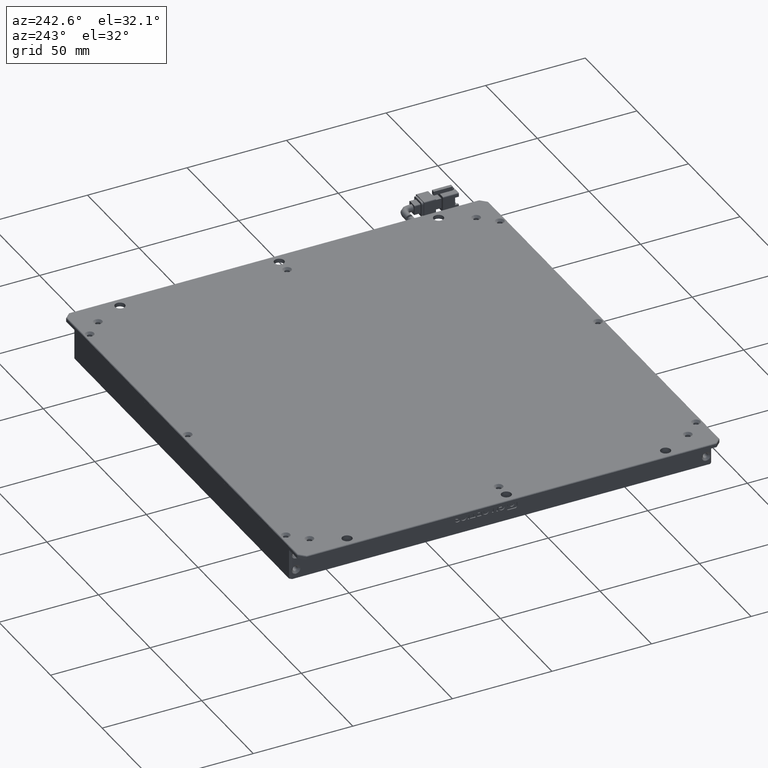
[diagram: clean part render]
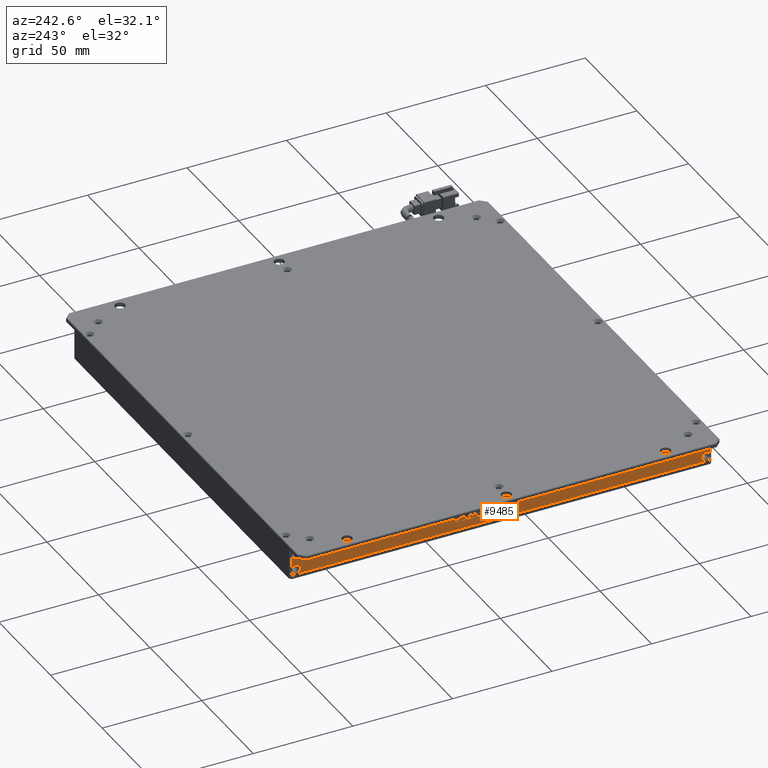
[diagram: same view with one face highlighted and labeled with its STEP entity id]
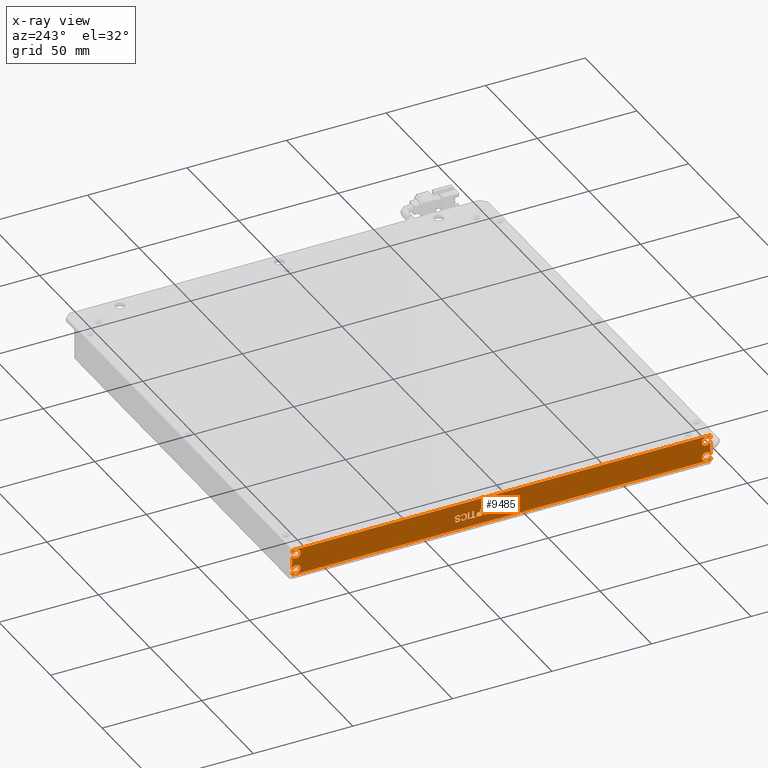
[diagram: x-ray of the same camera — body ghosted, the highlighted face saturated]
A machine part, auxiliary view. The second image highlights one B-rep face of the part: STEP entity #9485.
The next image is the same camera in x-ray: the body ghosted, the highlighted face saturated — about 0% of this face is hidden behind the body in this view.
In plain terms, the highlighted planar face has unit normal (-1, 0, -0).
Its self-contained STEP definition (entity closure, byte-faithful):
#14 = VECTOR ( 'NONE', #15213, 1000.000000000000000 ) ;
#16 = CARTESIAN_POINT ( 'NONE',  ( -86.33424941752387800, -20.67919464486184100, -9.082796994100927900 ) ) ;
#74 = CARTESIAN_POINT ( 'NONE',  ( -86.33424941752387800, -33.73964624031899700, -5.517680715031124400 ) ) ;
#76 = DIRECTION ( 'NONE',  ( -0.0000000000000000000, -0.0000000000000000000, -1.000000000000000000 ) ) ;
#170 = CARTESIAN_POINT ( 'NONE',  ( -86.33424941752387800, -15.64744775465093300, -5.572102023846790400 ) ) ;
#180 = CARTESIAN_POINT ( 'NONE',  ( -86.33424941752387800, -12.85814272490498700, -6.787448156891649400 ) ) ;
#190 = CARTESIAN_POINT ( 'NONE',  ( -86.33424941752387800, -16.22951914459169800, -7.324657459217241300 ) ) ;
#214 = CARTESIAN_POINT ( 'NONE',  ( -86.33424941752160500, 71.62124601721927800, -1.583484861002810300 ) ) ;
#271 = CARTESIAN_POINT ( 'NONE',  ( -86.33424941752387800, -28.87996533171977000, -7.096750482473000300 ) ) ;
#273 = EDGE_CURVE ( 'NONE', #15029, #590, #13476, .T. ) ;
#275 = ORIENTED_EDGE ( 'NONE', *, *, #19744, .F. ) ;
#281 = CARTESIAN_POINT ( 'NONE',  ( -86.33424941752387800, -11.02570627276899800, -8.420702618762941700 ) ) ;
#297 = CARTESIAN_POINT ( 'NONE',  ( -86.33424941752387800, -17.36858079954006900, -9.082796994100983000 ) ) ;
#302 = CARTESIAN_POINT ( 'NONE',  ( -86.33424941751933100, 67.42124601719447700, -2.500000000023665500 ) ) ;
#310 = CARTESIAN_POINT ( 'NONE',  ( -86.33424941752387800, -11.46098209753904100, -5.517680715031235500 ) ) ;
#317 = CARTESIAN_POINT ( 'NONE',  ( -86.33424941752387800, -16.17897831170878200, -6.174190990855986000 ) ) ;
#400 = VECTOR ( 'NONE', #21144, 1000.000000000000000 ) ;
#451 = CARTESIAN_POINT ( 'NONE',  ( -86.33424941752387800, -33.78526549396954000, -8.643262110379978900 ) ) ;
#472 = B_SPLINE_CURVE_WITH_KNOTS ( 'NONE', 3,
 ( #21113, #12679, #7440, #10772 ),
 .UNSPECIFIED., .F., .F.,
 ( 4, 4 ),
 ( 3.000000000000000000, 4.000000000000000000 ),
 .UNSPECIFIED. ) ;
#476 = CARTESIAN_POINT ( 'NONE',  ( -86.33424941752387800, -16.22951914459169800, -7.324657459217241300 ) ) ;
#484 = CARTESIAN_POINT ( 'NONE',  ( -86.33424941752387800, -12.48362947449949100, -6.255586339693207000 ) ) ;
#580 = FACE_BOUND ( 'NONE', #6405, .T. ) ;
#590 = VERTEX_POINT ( 'NONE', #8726 ) ;
#650 = CARTESIAN_POINT ( 'NONE',  ( -86.33424941752387800, -33.18303455832860700, -8.464192342938114100 ) ) ;
#672 = VERTEX_POINT ( 'NONE', #20965 ) ;
#722 = CARTESIAN_POINT ( 'NONE',  ( -86.33424941752387800, -33.07144721381816100, -8.106052808054386100 ) ) ;
#724 = CARTESIAN_POINT ( 'NONE',  ( -86.33424941752387800, -11.53688799261737300, -8.626983040612611100 ) ) ;
#814 = CARTESIAN_POINT ( 'NONE',  ( -86.33424941752387800, -19.60099021003214400, -8.594424901077712100 ) ) ;
#830 = CARTESIAN_POINT ( 'NONE',  ( -86.33424941752387800, -14.66530876060018200, -9.131634203403304900 ) ) ;
#833 = CARTESIAN_POINT ( 'NONE',  ( -86.33424941752387800, -17.79382417433739100, -8.594424901077712100 ) ) ;
#835 = CARTESIAN_POINT ( 'NONE',  ( -86.33424941751933100, 69.62124601721924900, -2.500000000023665500 ) ) ;
#842 = DIRECTION ( 'NONE',  ( -0.0000000000000000000, -1.000000000000000000, 1.923882974416384200E-014 ) ) ;
#844 = ORIENTED_EDGE ( 'NONE', *, *, #13728, .F. ) ;
#897 = CARTESIAN_POINT ( 'NONE',  ( -86.33424941752387800, -25.70601995584081900, -9.131634203403248100 ) ) ;
#899 = CARTESIAN_POINT ( 'NONE',  ( -86.33424941752387800, -11.46098209753904100, -7.666517924333547300 ) ) ;
#904 = CARTESIAN_POINT ( 'NONE',  ( -86.33424941752387800, -32.98039799802576500, -7.113029552240422300 ) ) ;
#916 = DIRECTION ( 'NONE',  ( -0.0000000000000000000, -1.000000000000000000, -0.0000000000000000000 ) ) ;
#944 = DIRECTION ( 'NONE',  ( -0.0000000000000000000, -0.0000000000000000000, -1.000000000000000000 ) ) ;
#960 = VERTEX_POINT ( 'NONE', #10776 ) ;
#1061 = CARTESIAN_POINT ( 'NONE',  ( -86.33424941752387800, -33.73964624031899700, -5.517680715031124400 ) ) ;
#1084 = CARTESIAN_POINT ( 'NONE',  ( -86.33424941752387800, -31.82619302236333400, -7.064192342938156300 ) ) ;
#1096 = LINE ( 'NONE', #21430, #14414 ) ;
#1105 = ORIENTED_EDGE ( 'NONE', *, *, #3464, .F. ) ;
#1132 = DIRECTION ( 'NONE',  ( 0.0000000000000000000, 1.000000000000000000, 0.0000000000000000000 ) ) ;
#1201 = CARTESIAN_POINT ( 'NONE',  ( -86.33424941752387800, -10.12448939878313100, -7.113029552240533300 ) ) ;
#1233 = ORIENTED_EDGE ( 'NONE', *, *, #15273, .T. ) ;
#1242 = EDGE_CURVE ( 'NONE', #13245, #672, #6559, .T. ) ;
#1246 = CARTESIAN_POINT ( 'NONE',  ( -86.33424941752387800, 71.62124601721927800, -6.500000000023664600 ) ) ;
#1251 = CARTESIAN_POINT ( 'NONE',  ( -86.33424941752387800, -18.87202860916703500, -8.594424901077712100 ) ) ;
#1298 = CARTESIAN_POINT ( 'NONE',  ( -86.33424941752387800, -36.24803787086694500, -5.114693876153940400 ) ) ;
#1408 = ORIENTED_EDGE ( 'NONE', *, *, #17218, .F. ) ;
#1444 = LINE ( 'NONE', #14385, #11979 ) ;
#1448 = ORIENTED_EDGE ( 'NONE', *, *, #5430, .F. ) ;
#1470 = VERTEX_POINT ( 'NONE', #18838 ) ;
#1477 = CARTESIAN_POINT ( 'NONE',  ( -86.33424941752387800, -34.65089556427803100, -8.149305917843474100 ) ) ;
#1481 = CARTESIAN_POINT ( 'NONE',  ( -86.33424941752387800, -10.33715840905874500, -8.746284014111825700 ) ) ;
#1500 = ORIENTED_EDGE ( 'NONE', *, *, #11623, .F. ) ;
#1535 = CARTESIAN_POINT ( 'NONE',  ( -86.33424941752387800, -36.24803787086694500, -5.742821307906941000 ) ) ;
#1605 = CARTESIAN_POINT ( 'NONE',  ( -86.33424941752387800, -10.86868896611670200, -6.510703970845198400 ) ) ;
#1609 = EDGE_CURVE ( 'NONE', #4637, #2458, #17622, .T. ) ;
#1652 = CARTESIAN_POINT ( 'NONE',  ( -86.33424941752387800, -17.79382417433739100, -9.082796994100983000 ) ) ;
#1678 = CARTESIAN_POINT ( 'NONE',  ( -86.33424941752387800, -31.85657430954563900, -6.000468708541160500 ) ) ;
#1755 = CARTESIAN_POINT ( 'NONE',  ( -86.33424941752387800, -21.41336176222285900, -9.082796994100927900 ) ) ;
#1758 = ORIENTED_EDGE ( 'NONE', *, *, #7949, .F. ) ;
#1777 = VECTOR ( 'NONE', #8439, 1000.000000000000000 ) ;
#1822 = CARTESIAN_POINT ( 'NONE',  ( -86.33424941752387800, -31.82619302236333400, -7.064192342938156300 ) ) ;
#1851 = LINE ( 'NONE', #12908, #21385 ) ;
#1890 = VERTEX_POINT ( 'NONE', #12975 ) ;
#1952 = CARTESIAN_POINT ( 'NONE',  ( -86.33424941752387800, -33.95231525059455900, -7.601401645263693200 ) ) ;
#1962 = CARTESIAN_POINT ( 'NONE',  ( -86.33424941752387800, -29.32565218948052200, -5.463496020601764000 ) ) ;
#2002 = AXIS2_PLACEMENT_3D ( 'NONE', #5215, #19333, #17294 ) ;
#2004 = B_SPLINE_CURVE_WITH_KNOTS ( 'NONE', 3,
 ( #4243, #14436, #12751, #19856 ),
 .UNSPECIFIED., .F., .F.,
 ( 4, 4 ),
 ( 2.000000000000000000, 3.000000000000000000 ),
 .UNSPECIFIED. ) ;
#2034 = CARTESIAN_POINT ( 'NONE',  ( -86.33424941752387800, -20.67919464486184100, -8.594424901077712100 ) ) ;
#2080 = EDGE_CURVE ( 'NONE', #3517, #7499, #21964, .T. ) ;
#2088 = ORIENTED_EDGE ( 'NONE', *, *, #8945, .F. ) ;
#2132 = CARTESIAN_POINT ( 'NONE',  ( -86.33424941752387800, -14.63492747341788000, -5.517680715031179500 ) ) ;
#2181 = EDGE_CURVE ( 'NONE', #5160, #3055, #21261, .T. ) ;
#2190 = VECTOR ( 'NONE', #21663, 1000.000000000000000 ) ;
#2238 = CARTESIAN_POINT ( 'NONE',  ( -86.33424941752387800, -13.64285067514847700, -6.228375685285401500 ) ) ;
#2342 = CIRCLE ( 'NONE', #12127, 2.200000000007612800 ) ;
#2356 = CARTESIAN_POINT ( 'NONE',  ( -86.33424941752387800, -13.38465705697650100, -8.735352429471442200 ) ) ;
#2358 = VERTEX_POINT ( 'NONE', #22486 ) ;
#2381 = CARTESIAN_POINT ( 'NONE',  ( -86.33424941752387800, -33.09189069678170400, -6.157911921088453000 ) ) ;
#2430 = CARTESIAN_POINT ( 'NONE',  ( -86.33424941752387800, -17.36858079954006900, -9.082796994100983000 ) ) ;
#2443 = ORIENTED_EDGE ( 'NONE', *, *, #21915, .F. ) ;
#2453 = EDGE_CURVE ( 'NONE', #15603, #5160, #472, .T. ) ;
#2458 = VERTEX_POINT ( 'NONE', #9006 ) ;
#2473 = FACE_BOUND ( 'NONE', #19667, .T. ) ;
#2474 = CARTESIAN_POINT ( 'NONE',  ( -86.33424941752387800, -12.85312649991865500, -7.585122575496326300 ) ) ;
#2505 = EDGE_LOOP ( 'NONE', ( #275, #10987, #16833, #1105, #10856, #11950, #9038 ) ) ;
#2530 = CARTESIAN_POINT ( 'NONE',  ( -86.33424941752387800, -33.72450291960505100, -5.989773738286972500 ) ) ;
#2558 = ORIENTED_EDGE ( 'NONE', *, *, #18979, .F. ) ;
#2566 = DIRECTION ( 'NONE',  ( -0.0000000000000000000, 1.000000000000000000, -0.0000000000000000000 ) ) ;
#2577 = CARTESIAN_POINT ( 'NONE',  ( -86.33424941752387800, -13.86564678115170900, -9.120702618762921400 ) ) ;
#2625 = B_SPLINE_CURVE_WITH_KNOTS ( 'NONE', 3,
 ( #12628, #2238, #10651, #12330 ),
 .UNSPECIFIED., .F., .F.,
 ( 4, 4 ),
 ( 4.000000000000000000, 5.000000000000000000 ),
 .UNSPECIFIED. ) ;
#2635 = CARTESIAN_POINT ( 'NONE',  ( -86.33424941752387800, -12.05848074545667900, -7.899772386204827700 ) ) ;
#2663 = DIRECTION ( 'NONE',  ( 1.000000000000000000, -0.0000000000000000000, 1.130331070474788800E-016 ) ) ;
#2708 = EDGE_LOOP ( 'NONE', ( #2920, #17415, #16138, #4553 ) ) ;
#2742 = DIRECTION ( 'NONE',  ( -0.0000000000000000000, -1.000000000000000000, -0.0000000000000000000 ) ) ;
#2768 = ORIENTED_EDGE ( 'NONE', *, *, #14918, .F. ) ;
#2773 = B_SPLINE_CURVE_WITH_KNOTS ( 'NONE', 3,
 ( #9675, #9907, #9748, #6287 ),
 .UNSPECIFIED., .F., .F.,
 ( 4, 4 ),
 ( 1.000000000000000000, 2.000000000000000000 ),
 .UNSPECIFIED. ) ;
#2774 = CARTESIAN_POINT ( 'NONE',  ( -86.33424941752387800, -10.12448939878313100, -6.559541180147519400 ) ) ;
#2789 = CARTESIAN_POINT ( 'NONE',  ( -86.33424941752387800, -12.04825900397499300, -8.474887313192358100 ) ) ;
#2790 = CARTESIAN_POINT ( 'NONE',  ( -86.33424941752387800, -12.85814272490498700, -6.168843505728892400 ) ) ;
#2803 = CARTESIAN_POINT ( 'NONE',  ( -86.33424941752387800, -22.21311838742556700, -6.803727226659071400 ) ) ;
#2883 = CARTESIAN_POINT ( 'NONE',  ( -86.33424941752387800, -21.40323466649524100, -6.781864057378415500 ) ) ;
#2920 = ORIENTED_EDGE ( 'NONE', *, *, #273, .F. ) ;
#2925 = CARTESIAN_POINT ( 'NONE',  ( -86.33424941752387800, -35.36991936092464800, -8.480471412705536900 ) ) ;
#2996 = DIRECTION ( 'NONE',  ( 1.000000000000000000, -0.0000000000000000000, 1.130331070474788800E-016 ) ) ;
#3042 = CARTESIAN_POINT ( 'NONE',  ( -86.33424941752387800, -11.46098209753904100, -5.517680715031235500 ) ) ;
#3049 = ORIENTED_EDGE ( 'NONE', *, *, #2453, .F. ) ;
#3055 = VERTEX_POINT ( 'NONE', #20161 ) ;
#3061 = EDGE_CURVE ( 'NONE', #22036, #22555, #7219, .T. ) ;
#3091 = ORIENTED_EDGE ( 'NONE', *, *, #20396, .F. ) ;
#3136 = ORIENTED_EDGE ( 'NONE', *, *, #10339, .F. ) ;
#3157 = LINE ( 'NONE', #814, #17547 ) ;
#3177 = EDGE_CURVE ( 'NONE', #4899, #20373, #5309, .T. ) ;
#3194 = EDGE_CURVE ( 'NONE', #21437, #17399, #9507, .T. ) ;
#3253 = CARTESIAN_POINT ( 'NONE',  ( -86.33424941752387800, -10.87891070759838800, -6.152564435961414400 ) ) ;
#3294 = CARTESIAN_POINT ( 'NONE',  ( -86.33424941752387800, -22.21311838742556700, -6.803727226659071400 ) ) ;
#3339 = VERTEX_POINT ( 'NONE', #21891 ) ;
#3409 = VERTEX_POINT ( 'NONE', #10354 ) ;
#3427 = B_SPLINE_CURVE_WITH_KNOTS ( 'NONE', 3,
 ( #13039, #2789, #6140, #11198 ),
 .UNSPECIFIED., .F., .F.,
 ( 4, 4 ),
 ( 9.000000000000000000, 10.00000000000000000 ),
 .UNSPECIFIED. ) ;
#3464 = EDGE_CURVE ( 'NONE', #7499, #20479, #6377, .T. ) ;
#3468 = CARTESIAN_POINT ( 'NONE',  ( -86.33424941752387800, -10.86868896611670200, -6.510703970845198400 ) ) ;
#3517 = VERTEX_POINT ( 'NONE', #9029 ) ;
#3540 = FACE_BOUND ( 'NONE', #6574, .T. ) ;
#3544 = CARTESIAN_POINT ( 'NONE',  ( -86.33424941752387800, -10.86868896611670200, -6.510703970845198400 ) ) ;
#3563 = EDGE_CURVE ( 'NONE', #6584, #12386, #3645, .T. ) ;
#3569 = B_SPLINE_CURVE_WITH_KNOTS ( 'NONE', 3,
 ( #11563, #16804, #2925, #8306 ),
 .UNSPECIFIED., .F., .F.,
 ( 4, 4 ),
 ( 12.00000000000000000, 13.00000000000000000 ),
 .UNSPECIFIED. ) ;
#3578 = VERTEX_POINT ( 'NONE', #16281 ) ;
#3599 = ORIENTED_EDGE ( 'NONE', *, *, #8533, .F. ) ;
#3603 = CARTESIAN_POINT ( 'NONE',  ( -86.33424941752387800, -13.29852942041615000, -6.103727226659093400 ) ) ;
#3645 = LINE ( 'NONE', #5334, #5556 ) ;
#3661 = CARTESIAN_POINT ( 'NONE',  ( -86.33424941752387800, -10.12448939878313100, -6.559541180147519400 ) ) ;
#3750 = CARTESIAN_POINT ( 'NONE',  ( -86.33424941752387800, -30.36826982063261900, -5.517680715031124400 ) ) ;
#3786 = ORIENTED_EDGE ( 'NONE', *, *, #21140, .F. ) ;
#3870 = ORIENTED_EDGE ( 'NONE', *, *, #6908, .F. ) ;
#3872 = LINE ( 'NONE', #19880, #10124 ) ;
#3886 = DIRECTION ( 'NONE',  ( -0.0000000000000000000, 1.000000000000000000, -0.0000000000000000000 ) ) ;
#3920 = VECTOR ( 'NONE', #21360, 1000.000000000000000 ) ;
#3929 = CARTESIAN_POINT ( 'NONE',  ( -86.33424941752387800, -11.56726927979973000, -5.973494668519550500 ) ) ;
#3950 = EDGE_CURVE ( 'NONE', #17376, #17332, #11210, .T. ) ;
#4007 = EDGE_CURVE ( 'NONE', #22555, #14893, #6057, .T. ) ;
#4010 = AXIS2_PLACEMENT_3D ( 'NONE', #18633, #2996, #4668 ) ;
#4051 = CARTESIAN_POINT ( 'NONE',  ( -86.33424941752387800, -11.46098209753904100, -7.666517924333547300 ) ) ;
#4057 = B_SPLINE_CURVE_WITH_KNOTS ( 'NONE', 3,
 ( #12542, #15989, #19514, #7301 ),
 .UNSPECIFIED., .F., .F.,
 ( 4, 4 ),
 ( 1.000000000000000000, 2.000000000000000000 ),
 .UNSPECIFIED. ) ;
#4068 = ORIENTED_EDGE ( 'NONE', *, *, #5751, .F. ) ;
#4085 = VECTOR ( 'NONE', #18298, 1000.000000000000000 ) ;
#4139 = VERTEX_POINT ( 'NONE', #302 ) ;
#4140 = DIRECTION ( 'NONE',  ( -0.0000000000000000000, -1.000000000000000000, -0.0000000000000000000 ) ) ;
#4145 = DIRECTION ( 'NONE',  ( -0.0000000000000000000, -0.0000000000000000000, 1.000000000000000000 ) ) ;
#4175 = ORIENTED_EDGE ( 'NONE', *, *, #8031, .F. ) ;
#4217 = B_SPLINE_CURVE_WITH_KNOTS ( 'NONE', 3,
 ( #310, #7158, #15823, #12530 ),
 .UNSPECIFIED., .F., .F.,
 ( 4, 4 ),
 ( 12.00000000000000000, 13.00000000000000000 ),
 .UNSPECIFIED. ) ;
#4225 = CARTESIAN_POINT ( 'NONE',  ( -86.33424941752387800, -24.08104699748492200, -7.308378389449764300 ) ) ;
#4237 = DIRECTION ( 'NONE',  ( -0.0000000000000000000, -0.0000000000000000000, -1.000000000000000000 ) ) ;
#4242 = VERTEX_POINT ( 'NONE', #833 ) ;
#4243 = CARTESIAN_POINT ( 'NONE',  ( -86.33424941752387800, -25.70601995584081900, -9.131634203403248100 ) ) ;
#4248 = CARTESIAN_POINT ( 'NONE',  ( -86.33424941752387800, -12.85814272490498700, -6.168843505728892400 ) ) ;
#4266 = CARTESIAN_POINT ( 'NONE',  ( -86.33424941752387800, -31.09723142149789500, -9.082796994100927900 ) ) ;
#4287 = CARTESIAN_POINT ( 'NONE',  ( -86.33424941752387800, -17.79382417433739100, -9.082796994100983000 ) ) ;
#4304 = EDGE_LOOP ( 'NONE', ( #17239, #15049, #17529, #22071, #3049, #3091, #10646, #17432, #13463, #3786 ) ) ;
#4325 = DIRECTION ( 'NONE',  ( 0.0000000000000000000, 1.000000000000000000, -1.577021341779334800E-015 ) ) ;
#4372 = CARTESIAN_POINT ( 'NONE',  ( -86.33424941752387800, -35.36991936092464800, -6.168843505728781400 ) ) ;
#4401 = CARTESIAN_POINT ( 'NONE',  ( -86.33424941752387800, -138.3787539827806700, -2.364341361582589200E-011 ) ) ;
#4402 = EDGE_CURVE ( 'NONE', #12364, #14759, #14651, .T. ) ;
#4441 = ORIENTED_EDGE ( 'NONE', *, *, #4007, .F. ) ;
#4472 = CARTESIAN_POINT ( 'NONE',  ( -86.33424941752387800, -13.29852942041615000, -6.771169087124227400 ) ) ;
#4483 = CARTESIAN_POINT ( 'NONE',  ( -86.33424941752387800, -29.60892693258509900, -9.082796994100927900 ) ) ;
#4486 = CARTESIAN_POINT ( 'NONE',  ( -86.33424941752160500, 71.62124601721927800, -3.416515139044516800 ) ) ;
#4519 = CARTESIAN_POINT ( 'NONE',  ( -86.33424941752387800, -34.81292909591665800, -5.561170439206351900 ) ) ;
#4540 = CARTESIAN_POINT ( 'NONE',  ( -86.33424941752387800, -21.02853212458061100, -7.943262110380055100 ) ) ;
#4553 = ORIENTED_EDGE ( 'NONE', *, *, #5514, .F. ) ;
#4627 = CARTESIAN_POINT ( 'NONE',  ( -86.33424941752387800, -31.82619302236333400, -9.082796994100927900 ) ) ;
#4637 = VERTEX_POINT ( 'NONE', #16143 ) ;
#4644 = FACE_BOUND ( 'NONE', #9333, .T. ) ;
#4668 = DIRECTION ( 'NONE',  ( 0.0000000000000000000, 1.000000000000000000, -1.774149009501751500E-015 ) ) ;
#4675 = VERTEX_POINT ( 'NONE', #15846 ) ;
#4690 = CARTESIAN_POINT ( 'NONE',  ( -86.33424941751933100, 69.62124601721924900, -10.50000000002366600 ) ) ;
#4694 = LINE ( 'NONE', #14721, #4948 ) ;
#4758 = EDGE_CURVE ( 'NONE', #20484, #5655, #19844, .T. ) ;
#4789 = DIRECTION ( 'NONE',  ( -0.0000000000000000000, -0.0000000000000000000, -1.000000000000000000 ) ) ;
#4859 = CARTESIAN_POINT ( 'NONE',  ( -86.33424941752387800, -33.95231525059455900, -7.113029552240422300 ) ) ;
#4878 = EDGE_LOOP ( 'NONE', ( #3136, #20034, #6127, #1500, #11193, #844, #21513, #13200, #2768, #1758, #10155, #10814, #21567, #7187 ) ) ;
#4899 = VERTEX_POINT ( 'NONE', #20267 ) ;
#4904 = ORIENTED_EDGE ( 'NONE', *, *, #17692, .T. ) ;
#4948 = VECTOR ( 'NONE', #4140, 1000.000000000000000 ) ;
#4965 = LINE ( 'NONE', #2034, #16117 ) ;
#4985 = CARTESIAN_POINT ( 'NONE',  ( -86.33424941752387800, -37.19965670906633200, -4.791154878994073700 ) ) ;
#4996 = CARTESIAN_POINT ( 'NONE',  ( -86.33424941752387800, -22.21311838742556700, -6.803727226659071400 ) ) ;
#4998 = CARTESIAN_POINT ( 'NONE',  ( -86.33424941752387800, -25.70601995584081900, -9.131634203403248100 ) ) ;
#5009 = EDGE_CURVE ( 'NONE', #9146, #15029, #10377, .T. ) ;
#5073 = CARTESIAN_POINT ( 'NONE',  ( -86.33424941752387800, -31.09723142149789500, -9.082796994100927900 ) ) ;
#5116 = VERTEX_POINT ( 'NONE', #4859 ) ;
#5133 = DIRECTION ( 'NONE',  ( -0.0000000000000000000, 1.000000000000000000, -0.0000000000000000000 ) ) ;
#5138 = CARTESIAN_POINT ( 'NONE',  ( -86.33424941752387800, -29.83673926357460700, -5.967910569006261500 ) ) ;
#5142 = CARTESIAN_POINT ( 'NONE',  ( -86.33424941752387800, -41.14434178376203000, -4.791154878994073700 ) ) ;
#5148 = ORIENTED_EDGE ( 'NONE', *, *, #6821, .F. ) ;
#5160 = VERTEX_POINT ( 'NONE', #15665 ) ;
#5171 = FACE_BOUND ( 'NONE', #4304, .T. ) ;
#5193 = CARTESIAN_POINT ( 'NONE',  ( -86.33424941752387800, -138.3787539827806400, -13.00000000002366300 ) ) ;
#5215 = CARTESIAN_POINT ( 'NONE',  ( -86.33424941752387800, -33.37875398278080000, -6.500000000023660200 ) ) ;
#5253 = CARTESIAN_POINT ( 'NONE',  ( -86.33424941752160500, 71.62124601721927800, -11.41651513904451900 ) ) ;
#5265 = ORIENTED_EDGE ( 'NONE', *, *, #16221, .F. ) ;
#5289 = LINE ( 'NONE', #2790, #5321 ) ;
#5309 = CIRCLE ( 'NONE', #12027, 2.200000000024779500 ) ;
#5321 = VECTOR ( 'NONE', #20375, 1000.000000000000000 ) ;
#5334 = CARTESIAN_POINT ( 'NONE',  ( -86.33424941752387800, -33.37875398278080000, -13.00000000002367700 ) ) ;
#5399 = CIRCLE ( 'NONE', #17702, 2.200000000024779500 ) ;
#5408 = ORIENTED_EDGE ( 'NONE', *, *, #3061, .F. ) ;
#5430 = EDGE_CURVE ( 'NONE', #14489, #8452, #16357, .T. ) ;
#5434 = CARTESIAN_POINT ( 'NONE',  ( -86.33424941752387800, 71.62124601721927800, -2.366336293579962600E-011 ) ) ;
#5451 = VECTOR ( 'NONE', #22385, 1000.000000000000000 ) ;
#5460 = VECTOR ( 'NONE', #21418, 1000.000000000000000 ) ;
#5497 = CARTESIAN_POINT ( 'NONE',  ( -86.33424941752387800, -19.60099021003214400, -5.582796994100978500 ) ) ;
#5514 = EDGE_CURVE ( 'NONE', #590, #14179, #7104, .T. ) ;
#5546 = EDGE_CURVE ( 'NONE', #9268, #20296, #16874, .T. ) ;
#5556 = VECTOR ( 'NONE', #10796, 1000.000000000000000 ) ;
#5655 = VERTEX_POINT ( 'NONE', #13272 ) ;
#5679 = EDGE_CURVE ( 'NONE', #12713, #8671, #9501, .T. ) ;
#5687 = ORIENTED_EDGE ( 'NONE', *, *, #3177, .T. ) ;
#5716 = CARTESIAN_POINT ( 'NONE',  ( -86.33424941752387800, -24.08104699748492200, -7.308378389449764300 ) ) ;
#5744 = CARTESIAN_POINT ( 'NONE',  ( -86.33424941752387800, -40.51612874786769700, -10.01095034606709300 ) ) ;
#5751 = EDGE_CURVE ( 'NONE', #12958, #19386, #13336, .T. ) ;
#5760 = DIRECTION ( 'NONE',  ( -0.0000000000000000000, 1.000000000000000000, -0.0000000000000000000 ) ) ;
#5810 = VECTOR ( 'NONE', #2742, 1000.000000000000000 ) ;
#5850 = VERTEX_POINT ( 'NONE', #1652 ) ;
#5858 = LINE ( 'NONE', #8244, #14030 ) ;
#5917 = CARTESIAN_POINT ( 'NONE',  ( -86.33424941752387800, 71.62124601721927800, -13.00000000002368400 ) ) ;
#5972 = DIRECTION ( 'NONE',  ( 0.0000000000000000000, 1.000000000000000000, 0.0000000000000000000 ) ) ;
#6057 = B_SPLINE_CURVE_WITH_KNOTS ( 'NONE', 3,
 ( #17456, #20881, #5142, #17303 ),
 .UNSPECIFIED., .F., .F.,
 ( 4, 4 ),
 ( 7.000000000000000000, 8.000000000000000000 ),
 .UNSPECIFIED. ) ;
#6116 = CARTESIAN_POINT ( 'NONE',  ( -86.33424941752387800, -32.31219897152504200, -8.106052808054386100 ) ) ;
#6126 = B_SPLINE_CURVE_WITH_KNOTS ( 'NONE', 3,
 ( #12901, #2356, #2577, #830 ),
 .UNSPECIFIED., .F., .F.,
 ( 4, 4 ),
 ( 9.000000000000000000, 10.00000000000000000 ),
 .UNSPECIFIED. ) ;
#6127 = ORIENTED_EDGE ( 'NONE', *, *, #12668, .F. ) ;
#6140 = CARTESIAN_POINT ( 'NONE',  ( -86.33424941752387800, -11.88120924734975500, -8.626983040612611100 ) ) ;
#6177 = CARTESIAN_POINT ( 'NONE',  ( -86.33424941752387800, -33.37875398278080000, -2.365035250972980000E-011 ) ) ;
#6287 = CARTESIAN_POINT ( 'NONE',  ( -86.33424941752387800, -13.93634715973474100, -7.975820249914955100 ) ) ;
#6302 = CARTESIAN_POINT ( 'NONE',  ( -86.33424941752387800, -20.67919464486184100, -8.594424901077712100 ) ) ;
#6377 = LINE ( 'NONE', #15407, #1777 ) ;
#6405 = EDGE_LOOP ( 'NONE', ( #10375, #2558, #21931, #12260, #14503, #6640, #18925, #13375 ) ) ;
#6435 = DIRECTION ( 'NONE',  ( 1.000000000000000000, -0.0000000000000000000, 1.130331070474788800E-016 ) ) ;
#6448 = VERTEX_POINT ( 'NONE', #74 ) ;
#6482 = CARTESIAN_POINT ( 'NONE',  ( -86.33424941752387800, -12.04825900397499300, -5.485122575496335500 ) ) ;
#6547 = EDGE_CURVE ( 'NONE', #5850, #18848, #1851, .T. ) ;
#6550 = CARTESIAN_POINT ( 'NONE',  ( -86.33424941752387800, -12.75176089689000800, -8.800468708541187000 ) ) ;
#6559 = LINE ( 'NONE', #1084, #9800 ) ;
#6560 = VERTEX_POINT ( 'NONE', #4248 ) ;
#6574 = EDGE_LOOP ( 'NONE', ( #4441, #5408, #21726, #8445, #9492, #11735, #20071, #13098 ) ) ;
#6584 = VERTEX_POINT ( 'NONE', #5917 ) ;
#6590 = DIRECTION ( 'NONE',  ( -0.0000000000000000000, -0.0000000000000000000, 1.000000000000000000 ) ) ;
#6611 = CARTESIAN_POINT ( 'NONE',  ( -86.33424941752387800, -33.78526549396954000, -8.643262110379978900 ) ) ;
#6627 = CARTESIAN_POINT ( 'NONE',  ( -86.33424941752387800, -15.48541422301219600, -7.292099319682342300 ) ) ;
#6640 = ORIENTED_EDGE ( 'NONE', *, *, #16287, .F. ) ;
#6686 = CARTESIAN_POINT ( 'NONE',  ( -86.33424941752387800, -10.21563326032970300, -8.040936528984698100 ) ) ;
#6729 = CIRCLE ( 'NONE', #9346, 2.200000000007612800 ) ;
#6736 = CARTESIAN_POINT ( 'NONE',  ( -86.33424941752387800, -10.21563326032970300, -8.040936528984698100 ) ) ;
#6765 = CARTESIAN_POINT ( 'NONE',  ( -86.33424941752387800, -22.91169870110854100, -6.803727226659071400 ) ) ;
#6776 = VECTOR ( 'NONE', #13306, 1000.000000000000000 ) ;
#6780 = VERTEX_POINT ( 'NONE', #6302 ) ;
#6800 = LINE ( 'NONE', #4287, #2190 ) ;
#6820 = FACE_BOUND ( 'NONE', #2505, .T. ) ;
#6821 = EDGE_CURVE ( 'NONE', #672, #1470, #21748, .T. ) ;
#6851 = EDGE_CURVE ( 'NONE', #11779, #13658, #20322, .T. ) ;
#6853 = CARTESIAN_POINT ( 'NONE',  ( -86.33424941752387800, -10.91421357401273300, -8.040936528984698100 ) ) ;
#6908 = EDGE_CURVE ( 'NONE', #17399, #11910, #16400, .T. ) ;
#6958 = EDGE_CURVE ( 'NONE', #10116, #12958, #9275, .T. ) ;
#6977 = CARTESIAN_POINT ( 'NONE',  ( -86.33424941752387800, -11.56726927979973000, -5.973494668519550500 ) ) ;
#7025 = LINE ( 'NONE', #1251, #20313 ) ;
#7048 = CARTESIAN_POINT ( 'NONE',  ( -86.33424941752387800, -11.53688799261737300, -8.626983040612611100 ) ) ;
#7056 = PLANE ( 'NONE',  #2002 ) ;
#7104 = LINE ( 'NONE', #2430, #21489 ) ;
#7158 = CARTESIAN_POINT ( 'NONE',  ( -86.33424941752387800, -10.55995451506192000, -5.517680715031235500 ) ) ;
#7167 = VERTEX_POINT ( 'NONE', #15063 ) ;
#7186 = EDGE_CURVE ( 'NONE', #960, #4899, #22508, .T. ) ;
#7187 = ORIENTED_EDGE ( 'NONE', *, *, #11145, .F. ) ;
#7219 = LINE ( 'NONE', #15268, #8308 ) ;
#7301 = CARTESIAN_POINT ( 'NONE',  ( -86.33424941752387800, -25.70601995584076200, -5.517680715031182200 ) ) ;
#7315 = CARTESIAN_POINT ( 'NONE',  ( -86.33424941752387800, -29.60892693258509900, -6.885122575496292400 ) ) ;
#7328 = VERTEX_POINT ( 'NONE', #7963 ) ;
#7344 = CARTESIAN_POINT ( 'NONE',  ( -86.33424941752387800, -14.03771276276361000, -5.517680715031179500 ) ) ;
#7379 = CARTESIAN_POINT ( 'NONE',  ( -86.33424941752387800, -17.79382417433739100, -8.594424901077712100 ) ) ;
#7386 = CARTESIAN_POINT ( 'NONE',  ( -86.33424941752387800, -11.56726927979973000, -5.973494668519550500 ) ) ;
#7391 = LINE ( 'NONE', #20363, #14472 ) ;
#7440 = CARTESIAN_POINT ( 'NONE',  ( -86.33424941752387800, -15.46516003155751300, -6.467214246669915000 ) ) ;
#7455 = CARTESIAN_POINT ( 'NONE',  ( -86.33424941752387800, -18.87202860916703500, -5.582796994100978500 ) ) ;
#7499 = VERTEX_POINT ( 'NONE', #13890 ) ;
#7599 = ORIENTED_EDGE ( 'NONE', *, *, #3563, .T. ) ;
#7626 = CARTESIAN_POINT ( 'NONE',  ( -86.33424941752387800, -36.24803787086694500, -5.742821307906941000 ) ) ;
#7645 = EDGE_CURVE ( 'NONE', #10965, #7935, #14567, .T. ) ;
#7658 = VERTEX_POINT ( 'NONE', #7781 ) ;
#7666 = EDGE_CURVE ( 'NONE', #14179, #9146, #12940, .T. ) ;
#7697 = CARTESIAN_POINT ( 'NONE',  ( -86.33424941752387800, -22.91169870110854100, -6.803727226659071400 ) ) ;
#7743 = EDGE_CURVE ( 'NONE', #12502, #19592, #5858, .T. ) ;
#7763 = EDGE_CURVE ( 'NONE', #3578, #7328, #2342, .T. ) ;
#7781 = CARTESIAN_POINT ( 'NONE',  ( -86.33424941752387800, -33.95231525059455900, -7.601401645263693200 ) ) ;
#7816 = CARTESIAN_POINT ( 'NONE',  ( -86.33424941752387800, -11.46098209753904100, -7.666517924333547300 ) ) ;
#7828 = VECTOR ( 'NONE', #8619, 1000.000000000000000 ) ;
#7856 = CARTESIAN_POINT ( 'NONE',  ( -86.33424941752387800, -24.15203131333115700, -8.458608243424880200 ) ) ;
#7935 = VERTEX_POINT ( 'NONE', #15772 ) ;
#7949 = EDGE_CURVE ( 'NONE', #20296, #7658, #11808, .T. ) ;
#7956 = ORIENTED_EDGE ( 'NONE', *, *, #18206, .F. ) ;
#7963 = CARTESIAN_POINT ( 'NONE',  ( -86.33424941752589600, -138.3787539827806700, -1.583484861012627100 ) ) ;
#7966 = CARTESIAN_POINT ( 'NONE',  ( -86.33424941752387800, -32.29696100505680100, -6.299076063868323400 ) ) ;
#7969 = ORIENTED_EDGE ( 'NONE', *, *, #17390, .T. ) ;
#7992 = CARTESIAN_POINT ( 'NONE',  ( -86.33424941752387800, -36.24803787086694500, -9.059293430489178800 ) ) ;
#8009 = DIRECTION ( 'NONE',  ( -0.0000000000000000000, -0.0000000000000000000, 1.000000000000000000 ) ) ;
#8018 = ORIENTED_EDGE ( 'NONE', *, *, #17103, .F. ) ;
#8031 = EDGE_CURVE ( 'NONE', #17389, #4637, #15372, .T. ) ;
#8223 = EDGE_CURVE ( 'NONE', #20658, #13245, #15330, .T. ) ;
#8244 = CARTESIAN_POINT ( 'NONE',  ( -86.33424941752387800, -13.29852942041615000, -6.771169087124227400 ) ) ;
#8306 = CARTESIAN_POINT ( 'NONE',  ( -86.33424941752387800, -35.41023845232543700, -7.340936528984608200 ) ) ;
#8308 = VECTOR ( 'NONE', #6590, 1000.000000000000000 ) ;
#8340 = CARTESIAN_POINT ( 'NONE',  ( -86.33424941752387800, -31.09723142149789500, -6.288144479228051000 ) ) ;
#8415 = DIRECTION ( 'NONE',  ( 1.130331070474788800E-016, -4.782939934548519700E-017, -1.000000000000000000 ) ) ;
#8419 = ORIENTED_EDGE ( 'NONE', *, *, #7645, .F. ) ;
#8424 = EDGE_CURVE ( 'NONE', #18848, #6780, #4965, .T. ) ;
#8425 = EDGE_CURVE ( 'NONE', #21280, #11779, #17986, .T. ) ;
#8439 = DIRECTION ( 'NONE',  ( -0.0000000000000000000, 1.000000000000000000, -0.0000000000000000000 ) ) ;
#8442 = CARTESIAN_POINT ( 'NONE',  ( -86.33424941752387800, -16.65476251938880000, -5.582796994100978500 ) ) ;
#8445 = ORIENTED_EDGE ( 'NONE', *, *, #15137, .F. ) ;
#8452 = VERTEX_POINT ( 'NONE', #21077 ) ;
#8491 = CARTESIAN_POINT ( 'NONE',  ( -86.33424941752387800, -14.46787771679264300, -5.989773738287028400 ) ) ;
#8520 = AXIS2_PLACEMENT_3D ( 'NONE', #18393, #21882, #11482 ) ;
#8533 = EDGE_CURVE ( 'NONE', #22392, #10965, #21371, .T. ) ;
#8534 = DIRECTION ( 'NONE',  ( -0.0000000000000000000, -1.000000000000000000, -0.0000000000000000000 ) ) ;
#8592 = EDGE_CURVE ( 'NONE', #17332, #4139, #11441, .T. ) ;
#8619 = DIRECTION ( 'NONE',  ( -0.0000000000000000000, 1.000000000000000000, -0.0000000000000000000 ) ) ;
#8644 = ORIENTED_EDGE ( 'NONE', *, *, #19289, .F. ) ;
#8660 = CARTESIAN_POINT ( 'NONE',  ( -86.33424941751933100, -136.3787539827808400, -2.500000000023655300 ) ) ;
#8671 = VERTEX_POINT ( 'NONE', #3294 ) ;
#8672 = EDGE_CURVE ( 'NONE', #17639, #7167, #20988, .T. ) ;
#8690 = ORIENTED_EDGE ( 'NONE', *, *, #10389, .T. ) ;
#8693 = FACE_BOUND ( 'NONE', #2708, .T. ) ;
#8726 = CARTESIAN_POINT ( 'NONE',  ( -86.33424941752387800, -16.65476251938880000, -9.082796994100983000 ) ) ;
#8737 = VECTOR ( 'NONE', #21146, 1000.000000000000000 ) ;
#8762 = VECTOR ( 'NONE', #8534, 1000.000000000000000 ) ;
#8766 = VECTOR ( 'NONE', #15122, 1000.000000000000000 ) ;
#8913 = CARTESIAN_POINT ( 'NONE',  ( -86.33424941752387800, -11.23316976654953300, -8.616051455972284500 ) ) ;
#8917 = CARTESIAN_POINT ( 'NONE',  ( -86.33424941752387800, -138.3787539827806700, -6.500000000023654900 ) ) ;
#8945 = EDGE_CURVE ( 'NONE', #13387, #13822, #4057, .T. ) ;
#8983 = ORIENTED_EDGE ( 'NONE', *, *, #9836, .F. ) ;
#9006 = CARTESIAN_POINT ( 'NONE',  ( -86.33424941752387800, -30.35312649991867000, -5.989773738286972500 ) ) ;
#9029 = CARTESIAN_POINT ( 'NONE',  ( -86.33424941752387800, -23.62542233550551900, -9.082796994100927900 ) ) ;
#9038 = ORIENTED_EDGE ( 'NONE', *, *, #19854, .F. ) ;
#9066 = CIRCLE ( 'NONE', #8520, 2.200000000007612800 ) ;
#9146 = VERTEX_POINT ( 'NONE', #11017 ) ;
#9175 = VERTEX_POINT ( 'NONE', #18078 ) ;
#9200 = ORIENTED_EDGE ( 'NONE', *, *, #15834, .F. ) ;
#9209 = CARTESIAN_POINT ( 'NONE',  ( -86.33424941752387800, -41.14434178376203000, -10.01095034606709300 ) ) ;
#9218 = LINE ( 'NONE', #1246, #4085 ) ;
#9250 = CARTESIAN_POINT ( 'NONE',  ( -86.33424941752387800, -32.98039799802576500, -6.526983040612564400 ) ) ;
#9268 = VERTEX_POINT ( 'NONE', #7966 ) ;
#9275 = B_SPLINE_CURVE_WITH_KNOTS ( 'NONE', 3,
 ( #7048, #8913, #281, #21013 ),
 .UNSPECIFIED., .F., .F.,
 ( 4, 4 ),
 ( 8.000000000000000000, 9.000000000000000000 ),
 .UNSPECIFIED. ) ;
#9333 = EDGE_LOOP ( 'NONE', ( #20971, #8983, #17114, #3870, #16951, #17889, #15627, #8644, #4068, #21527, #18619, #8419, #3599, #12804 ) ) ;
#9346 = AXIS2_PLACEMENT_3D ( 'NONE', #8660, #20839, #10436 ) ;
#9352 = VERTEX_POINT ( 'NONE', #11764 ) ;
#9360 = VECTOR ( 'NONE', #22488, 1000.000000000000000 ) ;
#9364 = EDGE_CURVE ( 'NONE', #10942, #7328, #10349, .T. ) ;
#9365 = CARTESIAN_POINT ( 'NONE',  ( -86.33424941752387800, -12.03803726249308400, -8.171169087124241100 ) ) ;
#9398 = VERTEX_POINT ( 'NONE', #10010 ) ;
#9466 = DIRECTION ( 'NONE',  ( -0.0000000000000000000, 1.000000000000000000, -0.0000000000000000000 ) ) ;
#9476 = EDGE_CURVE ( 'NONE', #9398, #9175, #19573, .T. ) ;
#9485 = ADVANCED_FACE ( 'NONE', ( #8693, #5171, #4644, #3540, #580, #6820, #2473, #21467, #11423, #16338 ), #7056, .T. ) ;
#9486 = CARTESIAN_POINT ( 'NONE',  ( -86.33424941752387800, -33.78526549396954000, -9.131634203403248100 ) ) ;
#9492 = ORIENTED_EDGE ( 'NONE', *, *, #22153, .F. ) ;
#9501 = LINE ( 'NONE', #4996, #13629 ) ;
#9507 = B_SPLINE_CURVE_WITH_KNOTS ( 'NONE', 3,
 ( #18885, #17206, #10297, #1605 ),
 .UNSPECIFIED., .F., .F.,
 ( 4, 4 ),
 ( 3.000000000000000000, 4.000000000000000000 ),
 .UNSPECIFIED. ) ;
#9675 = CARTESIAN_POINT ( 'NONE',  ( -86.33424941752387800, -14.61978415270415300, -8.626983040612556100 ) ) ;
#9735 = VERTEX_POINT ( 'NONE', #12810 ) ;
#9748 = CARTESIAN_POINT ( 'NONE',  ( -86.33424941752387800, -14.03771276276361000, -8.409771034122615100 ) ) ;
#9782 = VECTOR ( 'NONE', #5133, 1000.000000000000000 ) ;
#9800 = VECTOR ( 'NONE', #18147, 1000.000000000000000 ) ;
#9836 = EDGE_CURVE ( 'NONE', #22150, #6560, #5289, .T. ) ;
#9837 = CARTESIAN_POINT ( 'NONE',  ( -86.33424941752387800, -21.00837257888044000, -7.161866761542799300 ) ) ;
#9890 = DIRECTION ( 'NONE',  ( -0.0000000000000000000, -0.0000000000000000000, 1.000000000000000000 ) ) ;
#9907 = CARTESIAN_POINT ( 'NONE',  ( -86.33424941752387800, -14.26543044799882800, -8.626983040612611100 ) ) ;
#9975 = DIRECTION ( 'NONE',  ( 1.000000000000000000, -0.0000000000000000000, 1.130331070474788800E-016 ) ) ;
#10010 = CARTESIAN_POINT ( 'NONE',  ( -86.33424941752387800, -13.93634715973474100, -7.975820249914955100 ) ) ;
#10054 = AXIS2_PLACEMENT_3D ( 'NONE', #13141, #2663, #4325 ) ;
#10108 = CARTESIAN_POINT ( 'NONE',  ( -86.33424941752387800, -37.19965670906633200, -10.01095034606709300 ) ) ;
#10116 = VERTEX_POINT ( 'NONE', #724 ) ;
#10124 = VECTOR ( 'NONE', #9466, 1000.000000000000000 ) ;
#10155 = ORIENTED_EDGE ( 'NONE', *, *, #5546, .F. ) ;
#10165 = CARTESIAN_POINT ( 'NONE',  ( -86.33424941752387800, -30.84925954480788200, -5.989773738286972500 ) ) ;
#10276 = VERTEX_POINT ( 'NONE', #7992 ) ;
#10297 = CARTESIAN_POINT ( 'NONE',  ( -86.33424941752387800, -10.86868896611670200, -6.792795642018798900 ) ) ;
#10316 = ORIENTED_EDGE ( 'NONE', *, *, #1242, .F. ) ;
#10339 = EDGE_CURVE ( 'NONE', #21160, #18527, #11041, .T. ) ;
#10349 = LINE ( 'NONE', #13454, #14 ) ;
#10354 = CARTESIAN_POINT ( 'NONE',  ( -86.33424941752387800, -33.07144721381816100, -8.106052808054386100 ) ) ;
#10375 = ORIENTED_EDGE ( 'NONE', *, *, #20146, .F. ) ;
#10377 = LINE ( 'NONE', #22411, #12275 ) ;
#10379 = LINE ( 'NONE', #8917, #16394 ) ;
#10389 = EDGE_CURVE ( 'NONE', #14782, #2358, #9066, .T. ) ;
#10415 = VERTEX_POINT ( 'NONE', #17099 ) ;
#10418 = B_SPLINE_CURVE_WITH_KNOTS ( 'NONE', 3,
 ( #17078, #1477, #22243, #6611 ),
 .UNSPECIFIED., .F., .F.,
 ( 4, 4 ),
 ( 2.000000000000000000, 3.000000000000000000 ),
 .UNSPECIFIED. ) ;
#10436 = DIRECTION ( 'NONE',  ( 0.0000000000000000000, 1.000000000000000000, 1.774149009515595500E-015 ) ) ;
#10439 = LINE ( 'NONE', #4483, #5810 ) ;
#10461 = EDGE_CURVE ( 'NONE', #6560, #13957, #12648, .T. ) ;
#10578 = CARTESIAN_POINT ( 'NONE',  ( -86.33424941752387800, -40.51612874786769700, -10.01095034606709300 ) ) ;
#10646 = ORIENTED_EDGE ( 'NONE', *, *, #7743, .F. ) ;
#10651 = CARTESIAN_POINT ( 'NONE',  ( -86.33424941752387800, -14.03269653777716600, -5.967910569006316600 ) ) ;
#10753 = AXIS2_PLACEMENT_3D ( 'NONE', #20077, #14814, #5972 ) ;
#10772 = CARTESIAN_POINT ( 'NONE',  ( -86.33424941752387800, -15.48541422301219600, -7.292099319682342300 ) ) ;
#10776 = CARTESIAN_POINT ( 'NONE',  ( -86.33424941752160500, 71.62124601721927800, -9.583484861002810700 ) ) ;
#10785 = VERTEX_POINT ( 'NONE', #19508 ) ;
#10795 = CARTESIAN_POINT ( 'NONE',  ( -86.33424941752387800, -22.91169870110854100, -5.582796994100923400 ) ) ;
#10796 = DIRECTION ( 'NONE',  ( -5.406305616234845000E-033, -1.000000000000000000, 4.782939934548519700E-017 ) ) ;
#10814 = ORIENTED_EDGE ( 'NONE', *, *, #21375, .F. ) ;
#10856 = ORIENTED_EDGE ( 'NONE', *, *, #2080, .F. ) ;
#10882 = CARTESIAN_POINT ( 'NONE',  ( -86.33424941752387800, -24.13187176763094800, -6.179538475983023600 ) ) ;
#10942 = VERTEX_POINT ( 'NONE', #4401 ) ;
#10962 = CARTESIAN_POINT ( 'NONE',  ( -86.33424941752387800, -33.78526549396954000, -8.643262110379978900 ) ) ;
#10965 = VERTEX_POINT ( 'NONE', #7816 ) ;
#10967 = ORIENTED_EDGE ( 'NONE', *, *, #1609, .F. ) ;
#10987 = ORIENTED_EDGE ( 'NONE', *, *, #5679, .F. ) ;
#11017 = CARTESIAN_POINT ( 'NONE',  ( -86.33424941752387800, -17.36858079954006900, -5.582796994100978500 ) ) ;
#11041 = B_SPLINE_CURVE_WITH_KNOTS ( 'NONE', 3,
 ( #6116, #21807, #11405, #9486 ),
 .UNSPECIFIED., .F., .F.,
 ( 4, 4 ),
 ( 13.00000000000000000, 14.00000000000000000 ),
 .UNSPECIFIED. ) ;
#11094 = ORIENTED_EDGE ( 'NONE', *, *, #3950, .T. ) ;
#11141 = VECTOR ( 'NONE', #18385, 1000.000000000000000 ) ;
#11145 = EDGE_CURVE ( 'NONE', #18527, #4675, #3569, .T. ) ;
#11193 = ORIENTED_EDGE ( 'NONE', *, *, #4758, .F. ) ;
#11198 = CARTESIAN_POINT ( 'NONE',  ( -86.33424941752387800, -11.53688799261737300, -8.626983040612611100 ) ) ;
#11210 = LINE ( 'NONE', #13533, #19900 ) ;
#11380 = EDGE_CURVE ( 'NONE', #5116, #17639, #1444, .T. ) ;
#11405 = CARTESIAN_POINT ( 'NONE',  ( -86.33424941752387800, -33.02592260592213300, -9.131634203403248100 ) ) ;
#11423 = FACE_BOUND ( 'NONE', #4878, .T. ) ;
#11441 = CIRCLE ( 'NONE', #4010, 2.200000000024779500 ) ;
#11461 = VERTEX_POINT ( 'NONE', #21481 ) ;
#11482 = DIRECTION ( 'NONE',  ( 0.0000000000000000000, 1.000000000000000000, -7.885106708958201300E-016 ) ) ;
#11527 = EDGE_CURVE ( 'NONE', #6584, #20373, #9218, .T. ) ;
#11563 = CARTESIAN_POINT ( 'NONE',  ( -86.33424941752387800, -33.78526549396954000, -9.131634203403248100 ) ) ;
#11623 = EDGE_CURVE ( 'NONE', #5655, #14293, #10418, .T. ) ;
#11639 = CIRCLE ( 'NONE', #10753, 2.200000000007612800 ) ;
#11682 = B_SPLINE_CURVE_WITH_KNOTS ( 'NONE', 3,
 ( #476, #317, #170, #21054 ),
 .UNSPECIFIED., .F., .F.,
 ( 4, 4 ),
 ( 7.000000000000000000, 8.000000000000000000 ),
 .UNSPECIFIED. ) ;
#11709 = CARTESIAN_POINT ( 'NONE',  ( -86.33424941752387800, -11.46098209753904100, -5.517680715031235500 ) ) ;
#11735 = ORIENTED_EDGE ( 'NONE', *, *, #14486, .F. ) ;
#11752 = VERTEX_POINT ( 'NONE', #19123 ) ;
#11764 = CARTESIAN_POINT ( 'NONE',  ( -86.33424941752387800, -22.21311838742556700, -9.082796994100927900 ) ) ;
#11779 = VERTEX_POINT ( 'NONE', #12290 ) ;
#11808 = LINE ( 'NONE', #1952, #400 ) ;
#11858 = CARTESIAN_POINT ( 'NONE',  ( -86.33424941752387800, -14.61978415270415300, -8.626983040612556100 ) ) ;
#11910 = VERTEX_POINT ( 'NONE', #3929 ) ;
#11950 = ORIENTED_EDGE ( 'NONE', *, *, #14830, .F. ) ;
#11978 = CARTESIAN_POINT ( 'NONE',  ( -86.33424941752387800, -21.02853212458061100, -7.943262110380055100 ) ) ;
#11979 = VECTOR ( 'NONE', #3886, 1000.000000000000000 ) ;
#11990 = CARTESIAN_POINT ( 'NONE',  ( -86.33424941752387800, -11.55203131333143500, -9.131634203403304900 ) ) ;
#11996 = CARTESIAN_POINT ( 'NONE',  ( -86.33424941752387800, -29.58876738688459400, -6.266517924333479400 ) ) ;
#11997 = DIRECTION ( 'NONE',  ( -0.0000000000000000000, 1.000000000000000000, -0.0000000000000000000 ) ) ;
#12020 = EDGE_CURVE ( 'NONE', #2358, #11752, #11639, .T. ) ;
#12027 = AXIS2_PLACEMENT_3D ( 'NONE', #4690, #6435, #18580 ) ;
#12062 = EDGE_CURVE ( 'NONE', #7935, #10116, #3427, .T. ) ;
#12127 = AXIS2_PLACEMENT_3D ( 'NONE', #20370, #9975, #1132 ) ;
#12260 = ORIENTED_EDGE ( 'NONE', *, *, #6851, .F. ) ;
#12275 = VECTOR ( 'NONE', #11997, 1000.000000000000000 ) ;
#12290 = CARTESIAN_POINT ( 'NONE',  ( -86.33424941752387800, -19.60099021003214400, -5.582796994100978500 ) ) ;
#12330 = CARTESIAN_POINT ( 'NONE',  ( -86.33424941752387800, -14.46787771679264300, -5.989773738287028400 ) ) ;
#12364 = VERTEX_POINT ( 'NONE', #4985 ) ;
#12386 = VERTEX_POINT ( 'NONE', #5193 ) ;
#12419 = DIRECTION ( 'NONE',  ( -0.0000000000000000000, -0.0000000000000000000, 1.000000000000000000 ) ) ;
#12502 = VERTEX_POINT ( 'NONE', #3603 ) ;
#12505 = EDGE_LOOP ( 'NONE', ( #14274, #5687, #13848, #7599, #14165, #8690, #14745, #7969, #19035, #14747, #17139, #1233, #11094, #17345, #22033, #4904 ) ) ;
#12530 = CARTESIAN_POINT ( 'NONE',  ( -86.33424941752387800, -10.12448939878313100, -6.559541180147519400 ) ) ;
#12538 = LINE ( 'NONE', #18183, #16890 ) ;
#12542 = CARTESIAN_POINT ( 'NONE',  ( -86.33424941752387800, -27.33099291419660700, -7.308378389449764300 ) ) ;
#12628 = CARTESIAN_POINT ( 'NONE',  ( -86.33424941752387800, -13.29852942041615000, -6.771169087124227400 ) ) ;
#12648 = B_SPLINE_CURVE_WITH_KNOTS ( 'NONE', 3,
 ( #15160, #16872, #6482, #11709 ),
 .UNSPECIFIED., .F., .F.,
 ( 4, 4 ),
 ( 13.00000000000000000, 14.00000000000000000 ),
 .UNSPECIFIED. ) ;
#12668 = EDGE_CURVE ( 'NONE', #14293, #3409, #17548, .T. ) ;
#12679 = CARTESIAN_POINT ( 'NONE',  ( -86.33424941752387800, -15.12613893907499500, -6.033026848076115600 ) ) ;
#12700 = CARTESIAN_POINT ( 'NONE',  ( -86.33424941752387800, -34.65089556427803100, -6.488840801564375500 ) ) ;
#12713 = VERTEX_POINT ( 'NONE', #7697 ) ;
#12751 = CARTESIAN_POINT ( 'NONE',  ( -86.33424941752387800, -27.28045208131402100, -8.480471412705592000 ) ) ;
#12804 = ORIENTED_EDGE ( 'NONE', *, *, #18623, .F. ) ;
#12810 = CARTESIAN_POINT ( 'NONE',  ( -86.33424941752387800, -14.66530876060018200, -9.131634203403304900 ) ) ;
#12901 = CARTESIAN_POINT ( 'NONE',  ( -86.33424941752387800, -13.22252887958347300, -7.975820249914955100 ) ) ;
#12908 = CARTESIAN_POINT ( 'NONE',  ( -86.33424941752387800, -20.67919464486184100, -9.082796994100927900 ) ) ;
#12940 = LINE ( 'NONE', #14502, #14308 ) ;
#12951 = B_SPLINE_CURVE_WITH_KNOTS ( 'NONE', 3,
 ( #15514, #1481, #15594, #11990 ),
 .UNSPECIFIED., .F., .F.,
 ( 4, 4 ),
 ( 6.000000000000000000, 7.000000000000000000 ),
 .UNSPECIFIED. ) ;
#12958 = VERTEX_POINT ( 'NONE', #6853 ) ;
#12975 = CARTESIAN_POINT ( 'NONE',  ( -86.33424941752387800, -37.19965670906633200, -10.01095034606709300 ) ) ;
#13039 = CARTESIAN_POINT ( 'NONE',  ( -86.33424941752387800, -12.03803726249308400, -8.171169087124241100 ) ) ;
#13071 = DIRECTION ( 'NONE',  ( -0.0000000000000000000, 1.000000000000000000, -0.0000000000000000000 ) ) ;
#13098 = ORIENTED_EDGE ( 'NONE', *, *, #19439, .F. ) ;
#13109 = CARTESIAN_POINT ( 'NONE',  ( -86.33424941752160500, -138.3787539827806700, -11.41651513902439100 ) ) ;
#13141 = CARTESIAN_POINT ( 'NONE',  ( -86.33424941751933100, 69.62124601721924900, -10.50000000002366600 ) ) ;
#13188 = CARTESIAN_POINT ( 'NONE',  ( -86.33424941752387800, -35.41023845232543700, -7.340936528984608200 ) ) ;
#13200 = ORIENTED_EDGE ( 'NONE', *, *, #11380, .F. ) ;
#13245 = VERTEX_POINT ( 'NONE', #4627 ) ;
#13246 = B_SPLINE_CURVE_WITH_KNOTS ( 'NONE', 3,
 ( #2132, #7344, #19484, #16104 ),
 .UNSPECIFIED., .F., .F.,
 ( 4, 4 ),
 ( 6.000000000000000000, 7.000000000000000000 ),
 .UNSPECIFIED. ) ;
#13270 = CARTESIAN_POINT ( 'NONE',  ( -86.33424941752387800, -36.24803787086694500, -9.059293430489178800 ) ) ;
#13272 = CARTESIAN_POINT ( 'NONE',  ( -86.33424941752387800, -34.68127685146033200, -7.324657459217186300 ) ) ;
#13306 = DIRECTION ( 'NONE',  ( -0.0000000000000000000, -0.0000000000000000000, 1.000000000000000000 ) ) ;
#13332 = CARTESIAN_POINT ( 'NONE',  ( -86.33424941752387800, -40.51612874786769700, -4.791154878994073700 ) ) ;
#13336 = LINE ( 'NONE', #6736, #5451 ) ;
#13375 = ORIENTED_EDGE ( 'NONE', *, *, #6547, .F. ) ;
#13387 = VERTEX_POINT ( 'NONE', #22551 ) ;
#13454 = CARTESIAN_POINT ( 'NONE',  ( -86.33424941752392100, -138.3787539827806400, -6.500000000023654900 ) ) ;
#13463 = ORIENTED_EDGE ( 'NONE', *, *, #22469, .F. ) ;
#13476 = LINE ( 'NONE', #17380, #9360 ) ;
#13533 = CARTESIAN_POINT ( 'NONE',  ( -86.33424941752387800, 71.62124601721927800, -6.500000000023664600 ) ) ;
#13626 = CARTESIAN_POINT ( 'NONE',  ( -86.33424941752387800, -36.57162442652522600, -10.01095034606709300 ) ) ;
#13629 = VECTOR ( 'NONE', #15270, 1000.000000000000000 ) ;
#13651 = VERTEX_POINT ( 'NONE', #18146 ) ;
#13658 = VERTEX_POINT ( 'NONE', #7455 ) ;
#13720 = CARTESIAN_POINT ( 'NONE',  ( -86.33424941752387800, -32.98039799802576500, -6.526983040612564400 ) ) ;
#13728 = EDGE_CURVE ( 'NONE', #7167, #20484, #18989, .T. ) ;
#13748 = CARTESIAN_POINT ( 'NONE',  ( -86.33424941752387800, -21.01859432036235000, -8.702794289936543100 ) ) ;
#13754 = CARTESIAN_POINT ( 'NONE',  ( -86.33424941752387800, -31.09723142149789500, -6.885122575496292400 ) ) ;
#13763 = CARTESIAN_POINT ( 'NONE',  ( -86.33424941752387800, -30.35312649991867000, -5.989773738286972500 ) ) ;
#13782 = B_SPLINE_CURVE_WITH_KNOTS ( 'NONE', 3,
 ( #4225, #7856, #19993, #897 ),
 .UNSPECIFIED., .F., .F.,
 ( 4, 4 ),
 ( 3.000000000000000000, 4.000000000000000000 ),
 .UNSPECIFIED. ) ;
#13793 = CARTESIAN_POINT ( 'NONE',  ( -86.33424941752387800, -12.78214218407231000, -8.171169087124241100 ) ) ;
#13822 = VERTEX_POINT ( 'NONE', #20033 ) ;
#13848 = ORIENTED_EDGE ( 'NONE', *, *, #11527, .F. ) ;
#13859 = VECTOR ( 'NONE', #76, 1000.000000000000000 ) ;
#13890 = CARTESIAN_POINT ( 'NONE',  ( -86.33424941752387800, -23.62542233550551900, -5.582796994100923400 ) ) ;
#13909 = VECTOR ( 'NONE', #9890, 1000.000000000000000 ) ;
#13957 = VERTEX_POINT ( 'NONE', #3042 ) ;
#14030 = VECTOR ( 'NONE', #20147, 1000.000000000000000 ) ;
#14111 = CARTESIAN_POINT ( 'NONE',  ( -86.33424941752387800, -28.82942449883685400, -5.989773738286972500 ) ) ;
#14165 = ORIENTED_EDGE ( 'NONE', *, *, #18277, .T. ) ;
#14179 = VERTEX_POINT ( 'NONE', #297 ) ;
#14187 = LINE ( 'NONE', #10578, #5460 ) ;
#14211 = CARTESIAN_POINT ( 'NONE',  ( -86.33424941752387800, -16.17897831170878200, -8.464192342938169100 ) ) ;
#14270 = ORIENTED_EDGE ( 'NONE', *, *, #8223, .F. ) ;
#14274 = ORIENTED_EDGE ( 'NONE', *, *, #7186, .T. ) ;
#14293 = VERTEX_POINT ( 'NONE', #451 ) ;
#14308 = VECTOR ( 'NONE', #4145, 1000.000000000000000 ) ;
#14331 = CARTESIAN_POINT ( 'NONE',  ( -86.33424941752387800, -33.42078469353693000, -8.643262110379978900 ) ) ;
#14364 = CARTESIAN_POINT ( 'NONE',  ( -86.33424941752387800, -15.65766949613295400, -9.066517924333505000 ) ) ;
#14383 = CARTESIAN_POINT ( 'NONE',  ( -86.33424941752387800, -41.46783320607677600, -5.742821307906941000 ) ) ;
#14385 = CARTESIAN_POINT ( 'NONE',  ( -86.33424941752387800, -32.98039799802576500, -7.113029552240422300 ) ) ;
#14398 = VERTEX_POINT ( 'NONE', #21677 ) ;
#14414 = VECTOR ( 'NONE', #16296, 1000.000000000000000 ) ;
#14433 = CARTESIAN_POINT ( 'NONE',  ( -86.33424941752387800, -16.22951914459169800, -7.324657459217241300 ) ) ;
#14436 = CARTESIAN_POINT ( 'NONE',  ( -86.33424941752387800, -26.73869978277437900, -9.088144479228020600 ) ) ;
#14461 = VECTOR ( 'NONE', #16543, 1000.000000000000000 ) ;
#14472 = VECTOR ( 'NONE', #8009, 1000.000000000000000 ) ;
#14486 = EDGE_CURVE ( 'NONE', #14759, #10276, #18019, .T. ) ;
#14489 = VERTEX_POINT ( 'NONE', #16825 ) ;
#14500 = LINE ( 'NONE', #5073, #18556 ) ;
#14502 = CARTESIAN_POINT ( 'NONE',  ( -86.33424941752387800, -17.36858079954006900, -5.582796994100978500 ) ) ;
#14503 = ORIENTED_EDGE ( 'NONE', *, *, #8425, .F. ) ;
#14550 = CARTESIAN_POINT ( 'NONE',  ( -86.33424941752387800, -33.33986257347193300, -5.978842153646589000 ) ) ;
#14552 = CARTESIAN_POINT ( 'NONE',  ( -86.33424941752387800, -34.33193937174156200, -6.043958432716388000 ) ) ;
#14567 = B_SPLINE_CURVE_WITH_KNOTS ( 'NONE', 3,
 ( #899, #21526, #2635, #9365 ),
 .UNSPECIFIED., .F., .F.,
 ( 4, 4 ),
 ( 10.00000000000000000, 11.00000000000000000 ),
 .UNSPECIFIED. ) ;
#14651 = B_SPLINE_CURVE_WITH_KNOTS ( 'NONE', 3,
 ( #15045, #16763, #1298, #1535 ),
 .UNSPECIFIED., .F., .F.,
 ( 4, 4 ),
 ( 5.000000000000000000, 6.000000000000000000 ),
 .UNSPECIFIED. ) ;
#14719 = B_SPLINE_CURVE_WITH_KNOTS ( 'NONE', 3,
 ( #7386, #20987, #484, #180 ),
 .UNSPECIFIED., .F., .F.,
 ( 4, 4 ),
 ( 1.000000000000000000, 2.000000000000000000 ),
 .UNSPECIFIED. ) ;
#14721 = CARTESIAN_POINT ( 'NONE',  ( -86.33424941752387800, -23.62542233550551900, -9.082796994100927900 ) ) ;
#14745 = ORIENTED_EDGE ( 'NONE', *, *, #12020, .T. ) ;
#14747 = ORIENTED_EDGE ( 'NONE', *, *, #7763, .T. ) ;
#14759 = VERTEX_POINT ( 'NONE', #7626 ) ;
#14782 = VERTEX_POINT ( 'NONE', #13109 ) ;
#14814 = DIRECTION ( 'NONE',  ( 1.000000000000000000, -0.0000000000000000000, 1.130331070474788800E-016 ) ) ;
#14830 = EDGE_CURVE ( 'NONE', #9352, #3517, #4694, .T. ) ;
#14889 = CARTESIAN_POINT ( 'NONE',  ( -86.33424941752387800, -32.29696100505680100, -6.299076063868323400 ) ) ;
#14893 = VERTEX_POINT ( 'NONE', #13332 ) ;
#14918 = EDGE_CURVE ( 'NONE', #7658, #5116, #7391, .T. ) ;
#14935 = CARTESIAN_POINT ( 'NONE',  ( -86.33424941752387800, -10.57017625654410500, -7.481864057378449400 ) ) ;
#15019 = B_SPLINE_CURVE_WITH_KNOTS ( 'NONE', 3,
 ( #3750, #1962, #14111, #271 ),
 .UNSPECIFIED., .F., .F.,
 ( 4, 4 ),
 ( 8.000000000000000000, 9.000000000000000000 ),
 .UNSPECIFIED. ) ;
#15029 = VERTEX_POINT ( 'NONE', #8442 ) ;
#15045 = CARTESIAN_POINT ( 'NONE',  ( -86.33424941752387800, -37.19965670906633200, -4.791154878994073700 ) ) ;
#15049 = ORIENTED_EDGE ( 'NONE', *, *, #9476, .F. ) ;
#15063 = CARTESIAN_POINT ( 'NONE',  ( -86.33424941752387800, -32.98039799802576500, -6.526983040612564400 ) ) ;
#15122 = DIRECTION ( 'NONE',  ( -0.0000000000000000000, -0.0000000000000000000, -1.000000000000000000 ) ) ;
#15137 = EDGE_CURVE ( 'NONE', #1890, #11461, #14187, .T. ) ;
#15160 = CARTESIAN_POINT ( 'NONE',  ( -86.33424941752387800, -12.85814272490498700, -6.168843505728892400 ) ) ;
#15213 = DIRECTION ( 'NONE',  ( 1.130331070474788800E-016, -4.782939934548519700E-017, -1.000000000000000000 ) ) ;
#15268 = CARTESIAN_POINT ( 'NONE',  ( -86.33424941752387800, -41.46783320607677600, -5.742821307906941000 ) ) ;
#15270 = DIRECTION ( 'NONE',  ( -0.0000000000000000000, 1.000000000000000000, -0.0000000000000000000 ) ) ;
#15273 = EDGE_CURVE ( 'NONE', #10942, #17376, #21473, .T. ) ;
#15288 = CARTESIAN_POINT ( 'NONE',  ( -86.33424941752387800, -21.02853212458061100, -7.943262110380055100 ) ) ;
#15305 = LINE ( 'NONE', #17905, #17164 ) ;
#15330 = LINE ( 'NONE', #15637, #8762 ) ;
#15372 = LINE ( 'NONE', #7315, #3920 ) ;
#15407 = CARTESIAN_POINT ( 'NONE',  ( -86.33424941752387800, -22.91169870110854100, -5.582796994100923400 ) ) ;
#15514 = CARTESIAN_POINT ( 'NONE',  ( -86.33424941752387800, -10.21563326032970300, -8.040936528984698100 ) ) ;
#15568 = EDGE_CURVE ( 'NONE', #20479, #12713, #17351, .T. ) ;
#15594 = CARTESIAN_POINT ( 'NONE',  ( -86.33424941752387800, -10.78275062106515100, -9.109771034122593000 ) ) ;
#15603 = VERTEX_POINT ( 'NONE', #8491 ) ;
#15627 = ORIENTED_EDGE ( 'NONE', *, *, #18408, .F. ) ;
#15637 = CARTESIAN_POINT ( 'NONE',  ( -86.33424941752387800, -31.82619302236333400, -9.082796994100927900 ) ) ;
#15650 = CARTESIAN_POINT ( 'NONE',  ( -86.33424941752387800, -11.11164461782027100, -5.973494668519550500 ) ) ;
#15665 = CARTESIAN_POINT ( 'NONE',  ( -86.33424941752387800, -15.48541422301219600, -7.292099319682342300 ) ) ;
#15772 = CARTESIAN_POINT ( 'NONE',  ( -86.33424941752387800, -12.03803726249308400, -8.171169087124241100 ) ) ;
#15823 = CARTESIAN_POINT ( 'NONE',  ( -86.33424941752387800, -10.11455159456442500, -5.865125279660775300 ) ) ;
#15834 = EDGE_CURVE ( 'NONE', #19821, #13387, #2004, .T. ) ;
#15846 = CARTESIAN_POINT ( 'NONE',  ( -86.33424941752387800, -35.41023845232543700, -7.340936528984608200 ) ) ;
#15888 = EDGE_CURVE ( 'NONE', #4139, #19278, #5399, .T. ) ;
#15983 = VECTOR ( 'NONE', #13071, 1000.000000000000000 ) ;
#15989 = CARTESIAN_POINT ( 'NONE',  ( -86.33424941752387800, -27.28045208131399200, -6.179538475983024500 ) ) ;
#16104 = CARTESIAN_POINT ( 'NONE',  ( -86.33424941752387800, -13.29852942041615000, -6.103727226659093400 ) ) ;
#16117 = VECTOR ( 'NONE', #12419, 1000.000000000000000 ) ;
#16138 = ORIENTED_EDGE ( 'NONE', *, *, #7666, .F. ) ;
#16143 = CARTESIAN_POINT ( 'NONE',  ( -86.33424941752387800, -29.60892693258509900, -6.885122575496292400 ) ) ;
#16157 = CARTESIAN_POINT ( 'NONE',  ( -86.33424941752387800, -24.67334012890737300, -5.582796994100959900 ) ) ;
#16221 = EDGE_CURVE ( 'NONE', #10785, #19821, #13782, .T. ) ;
#16228 = CARTESIAN_POINT ( 'NONE',  ( -86.33424941752387800, -31.09723142149789500, -6.885122575496292400 ) ) ;
#16237 = EDGE_CURVE ( 'NONE', #4675, #6448, #21048, .T. ) ;
#16281 = CARTESIAN_POINT ( 'NONE',  ( -86.33424941751933100, -134.1787539827732300, -2.500000000023655300 ) ) ;
#16287 = EDGE_CURVE ( 'NONE', #6780, #21280, #3157, .T. ) ;
#16296 = DIRECTION ( 'NONE',  ( -1.130331070474788800E-016, 4.782939934548519700E-017, 1.000000000000000000 ) ) ;
#16338 = FACE_OUTER_BOUND ( 'NONE', #12505, .T. ) ;
#16357 = LINE ( 'NONE', #21681, #21769 ) ;
#16394 = VECTOR ( 'NONE', #20804, 1000.000000000000000 ) ;
#16400 = B_SPLINE_CURVE_WITH_KNOTS ( 'NONE', 3,
 ( #3468, #3253, #15650, #6977 ),
 .UNSPECIFIED., .F., .F.,
 ( 4, 4 ),
 ( 2.000000000000000000, 3.000000000000000000 ),
 .UNSPECIFIED. ) ;
#16543 = DIRECTION ( 'NONE',  ( -0.0000000000000000000, -0.0000000000000000000, -1.000000000000000000 ) ) ;
#16568 = CARTESIAN_POINT ( 'NONE',  ( -86.33424941752387800, -33.72450291960505100, -5.989773738286972500 ) ) ;
#16622 = ORIENTED_EDGE ( 'NONE', *, *, #17270, .F. ) ;
#16711 = EDGE_LOOP ( 'NONE', ( #5148, #10316, #14270, #16622, #1408, #10967, #4175, #8018, #1448, #2443 ) ) ;
#16763 = CARTESIAN_POINT ( 'NONE',  ( -86.33424941752387800, -36.57162442652522600, -4.791154878994073700 ) ) ;
#16794 = CARTESIAN_POINT ( 'NONE',  ( -86.33424941752387800, -12.34175548856114600, -9.120702618762921400 ) ) ;
#16804 = CARTESIAN_POINT ( 'NONE',  ( -86.33424941752387800, -34.82816706238489200, -9.077212894587637100 ) ) ;
#16825 = CARTESIAN_POINT ( 'NONE',  ( -86.33424941752387800, -28.87996533171977000, -7.096750482473000300 ) ) ;
#16833 = ORIENTED_EDGE ( 'NONE', *, *, #15568, .F. ) ;
#16872 = CARTESIAN_POINT ( 'NONE',  ( -86.33424941752387800, -12.51401076168179200, -5.702334581986333400 ) ) ;
#16874 = LINE ( 'NONE', #21609, #14461 ) ;
#16890 = VECTOR ( 'NONE', #18342, 1000.000000000000000 ) ;
#16951 = ORIENTED_EDGE ( 'NONE', *, *, #3194, .F. ) ;
#17078 = CARTESIAN_POINT ( 'NONE',  ( -86.33424941752387800, -34.68127685146033200, -7.324657459217186300 ) ) ;
#17099 = CARTESIAN_POINT ( 'NONE',  ( -86.33424941752160500, -138.3787539827806700, -3.416515139024328500 ) ) ;
#17103 = EDGE_CURVE ( 'NONE', #8452, #17389, #10439, .T. ) ;
#17114 = ORIENTED_EDGE ( 'NONE', *, *, #20362, .F. ) ;
#17139 = ORIENTED_EDGE ( 'NONE', *, *, #9364, .F. ) ;
#17164 = VECTOR ( 'NONE', #5760, 1000.000000000000000 ) ;
#17206 = CARTESIAN_POINT ( 'NONE',  ( -86.33424941752387800, -11.07624710565130500, -6.971865409460607800 ) ) ;
#17218 = EDGE_CURVE ( 'NONE', #2458, #18268, #19148, .T. ) ;
#17239 = ORIENTED_EDGE ( 'NONE', *, *, #21303, .F. ) ;
#17270 = EDGE_CURVE ( 'NONE', #18268, #20658, #14500, .T. ) ;
#17288 = CARTESIAN_POINT ( 'NONE',  ( -86.33424941752387800, -31.37056836038371100, -5.485122575496280500 ) ) ;
#17294 = DIRECTION ( 'NONE',  ( 5.406305616234845000E-033, 1.000000000000000000, -4.782939934548519700E-017 ) ) ;
#17303 = CARTESIAN_POINT ( 'NONE',  ( -86.33424941752387800, -40.51612874786769700, -4.791154878994073700 ) ) ;
#17332 = VERTEX_POINT ( 'NONE', #214 ) ;
#17345 = ORIENTED_EDGE ( 'NONE', *, *, #8592, .T. ) ;
#17351 = LINE ( 'NONE', #6765, #13859 ) ;
#17376 = VERTEX_POINT ( 'NONE', #5434 ) ;
#17380 = CARTESIAN_POINT ( 'NONE',  ( -86.33424941752387800, -16.65476251938880000, -9.082796994100983000 ) ) ;
#17389 = VERTEX_POINT ( 'NONE', #17525 ) ;
#17390 = EDGE_CURVE ( 'NONE', #11752, #10415, #10379, .T. ) ;
#17399 = VERTEX_POINT ( 'NONE', #3544 ) ;
#17415 = ORIENTED_EDGE ( 'NONE', *, *, #5009, .F. ) ;
#17432 = ORIENTED_EDGE ( 'NONE', *, *, #21476, .F. ) ;
#17456 = CARTESIAN_POINT ( 'NONE',  ( -86.33424941752387800, -41.46783320607677600, -5.742821307906941000 ) ) ;
#17525 = CARTESIAN_POINT ( 'NONE',  ( -86.33424941752387800, -29.60892693258509900, -9.082796994100927900 ) ) ;
#17529 = ORIENTED_EDGE ( 'NONE', *, *, #21643, .F. ) ;
#17547 = VECTOR ( 'NONE', #2566, 1000.000000000000000 ) ;
#17548 = B_SPLINE_CURVE_WITH_KNOTS ( 'NONE', 3,
 ( #10962, #14331, #650, #722 ),
 .UNSPECIFIED., .F., .F.,
 ( 4, 4 ),
 ( 1.000000000000000000, 2.000000000000000000 ),
 .UNSPECIFIED. ) ;
#17622 = B_SPLINE_CURVE_WITH_KNOTS ( 'NONE', 3,
 ( #18906, #11996, #5138, #13763 ),
 .UNSPECIFIED., .F., .F.,
 ( 4, 4 ),
 ( 4.000000000000000000, 5.000000000000000000 ),
 .UNSPECIFIED. ) ;
#17639 = VERTEX_POINT ( 'NONE', #904 ) ;
#17692 = EDGE_CURVE ( 'NONE', #19278, #960, #12538, .T. ) ;
#17702 = AXIS2_PLACEMENT_3D ( 'NONE', #835, #18055, #19643 ) ;
#17889 = ORIENTED_EDGE ( 'NONE', *, *, #21992, .F. ) ;
#17905 = CARTESIAN_POINT ( 'NONE',  ( -86.33424941752387800, -37.19965670906633200, -4.791154878994073700 ) ) ;
#17944 = CARTESIAN_POINT ( 'NONE',  ( -86.33424941752387800, -12.42296154588962100, -7.210703970845176300 ) ) ;
#17971 = CARTESIAN_POINT ( 'NONE',  ( -86.33424941752387800, -11.49126873896683100, -7.047913273170734300 ) ) ;
#17986 = LINE ( 'NONE', #5497, #8737 ) ;
#18019 = LINE ( 'NONE', #13270, #8766 ) ;
#18022 = CARTESIAN_POINT ( 'NONE',  ( -86.33424941752387800, -25.70601995584076200, -5.517680715031182200 ) ) ;
#18031 = B_SPLINE_CURVE_WITH_KNOTS ( 'NONE', 3,
 ( #18022, #16157, #10882, #5716 ),
 .UNSPECIFIED., .F., .F.,
 ( 4, 4 ),
 ( 0.0000000000000000000, 1.000000000000000000 ),
 .UNSPECIFIED. ) ;
#18048 = VERTEX_POINT ( 'NONE', #190 ) ;
#18055 = DIRECTION ( 'NONE',  ( 1.000000000000000000, -0.0000000000000000000, 1.130331070474788800E-016 ) ) ;
#18078 = CARTESIAN_POINT ( 'NONE',  ( -86.33424941752387800, -13.22252887958347300, -7.975820249914955100 ) ) ;
#18146 = CARTESIAN_POINT ( 'NONE',  ( -86.33424941752387800, -11.55203131333143500, -9.131634203403304900 ) ) ;
#18147 = DIRECTION ( 'NONE',  ( -0.0000000000000000000, -0.0000000000000000000, 1.000000000000000000 ) ) ;
#18169 = B_SPLINE_CURVE_WITH_KNOTS ( 'NONE', 3,
 ( #1061, #20308, #21979, #14889 ),
 .UNSPECIFIED., .F., .F.,
 ( 4, 4 ),
 ( 10.00000000000000000, 11.00000000000000000 ),
 .UNSPECIFIED. ) ;
#18183 = CARTESIAN_POINT ( 'NONE',  ( -86.33424941752387800, 71.62124601721927800, -6.500000000023664600 ) ) ;
#18206 = EDGE_CURVE ( 'NONE', #13822, #10785, #18031, .T. ) ;
#18268 = VERTEX_POINT ( 'NONE', #16228 ) ;
#18277 = EDGE_CURVE ( 'NONE', #12386, #14782, #1096, .T. ) ;
#18298 = DIRECTION ( 'NONE',  ( -1.130331070474788800E-016, 4.782939934548519700E-017, 1.000000000000000000 ) ) ;
#18328 = B_SPLINE_CURVE_WITH_KNOTS ( 'NONE', 3,
 ( #18463, #16794, #6550, #20274 ),
 .UNSPECIFIED., .F., .F.,
 ( 4, 4 ),
 ( 5.000000000000000000, 6.000000000000000000 ),
 .UNSPECIFIED. ) ;
#18342 = DIRECTION ( 'NONE',  ( 1.130331070474788800E-016, -4.782939934548519700E-017, -1.000000000000000000 ) ) ;
#18385 = DIRECTION ( 'NONE',  ( 5.406305616234845000E-033, 1.000000000000000000, -4.782939934548519700E-017 ) ) ;
#18388 = LINE ( 'NONE', #7379, #15983 ) ;
#18393 = CARTESIAN_POINT ( 'NONE',  ( -86.33424941751933100, -136.3787539827808400, -10.50000000002365600 ) ) ;
#18408 = EDGE_CURVE ( 'NONE', #13651, #18822, #18328, .T. ) ;
#18463 = CARTESIAN_POINT ( 'NONE',  ( -86.33424941752387800, -11.55203131333143500, -9.131634203403304900 ) ) ;
#18468 = CARTESIAN_POINT ( 'NONE',  ( -86.33424941752387800, -36.24803787086694500, -9.059293430489178800 ) ) ;
#18476 = B_SPLINE_CURVE_WITH_KNOTS ( 'NONE', 3,
 ( #2803, #2883, #9837, #4540 ),
 .UNSPECIFIED., .F., .F.,
 ( 4, 4 ),
 ( 6.000000000000000000, 7.000000000000000000 ),
 .UNSPECIFIED. ) ;
#18527 = VERTEX_POINT ( 'NONE', #19067 ) ;
#18556 = VECTOR ( 'NONE', #4789, 1000.000000000000000 ) ;
#18580 = DIRECTION ( 'NONE',  ( 0.0000000000000000000, 1.000000000000000000, -1.577021341779334800E-015 ) ) ;
#18619 = ORIENTED_EDGE ( 'NONE', *, *, #12062, .F. ) ;
#18623 = EDGE_CURVE ( 'NONE', #13957, #22392, #4217, .T. ) ;
#18633 = CARTESIAN_POINT ( 'NONE',  ( -86.33424941751933100, 69.62124601721924900, -2.500000000023665500 ) ) ;
#18770 = CARTESIAN_POINT ( 'NONE',  ( -86.33424941752387800, -15.18690151343959900, -8.605119871331901000 ) ) ;
#18791 = EDGE_CURVE ( 'NONE', #10415, #3578, #6729, .T. ) ;
#18822 = VERTEX_POINT ( 'NONE', #13793 ) ;
#18838 = CARTESIAN_POINT ( 'NONE',  ( -86.33424941752387800, -30.36826982063261900, -5.517680715031124400 ) ) ;
#18848 = VERTEX_POINT ( 'NONE', #16 ) ;
#18885 = CARTESIAN_POINT ( 'NONE',  ( -86.33424941752387800, -11.49126873896683100, -7.047913273170734300 ) ) ;
#18900 = CARTESIAN_POINT ( 'NONE',  ( -86.33424941752387800, -30.35312649991867000, -5.989773738286972500 ) ) ;
#18906 = CARTESIAN_POINT ( 'NONE',  ( -86.33424941752387800, -29.60892693258509900, -6.885122575496292400 ) ) ;
#18925 = ORIENTED_EDGE ( 'NONE', *, *, #8424, .F. ) ;
#18979 = EDGE_CURVE ( 'NONE', #3339, #4242, #18388, .T. ) ;
#18989 = B_SPLINE_CURVE_WITH_KNOTS ( 'NONE', 3,
 ( #9250, #2381, #14550, #16568 ),
 .UNSPECIFIED., .F., .F.,
 ( 4, 4 ),
 ( 4.000000000000000000, 5.000000000000000000 ),
 .UNSPECIFIED. ) ;
#19031 = CARTESIAN_POINT ( 'NONE',  ( -86.33424941752387800, -22.21311838742556700, -9.082796994100927900 ) ) ;
#19035 = ORIENTED_EDGE ( 'NONE', *, *, #18791, .T. ) ;
#19036 = CARTESIAN_POINT ( 'NONE',  ( -86.33424941752387800, -30.36826982063261900, -5.517680715031124400 ) ) ;
#19067 = CARTESIAN_POINT ( 'NONE',  ( -86.33424941752387800, -33.78526549396954000, -9.131634203403248100 ) ) ;
#19087 = EDGE_CURVE ( 'NONE', #3409, #21160, #3872, .T. ) ;
#19123 = CARTESIAN_POINT ( 'NONE',  ( -86.33424941752589600, -138.3787539827806700, -9.583484861012674800 ) ) ;
#19148 = B_SPLINE_CURVE_WITH_KNOTS ( 'NONE', 3,
 ( #18900, #10165, #8340, #13754 ),
 .UNSPECIFIED., .F., .F.,
 ( 4, 4 ),
 ( 3.000000000000000000, 4.000000000000000000 ),
 .UNSPECIFIED. ) ;
#19262 = CARTESIAN_POINT ( 'NONE',  ( -86.33424941752387800, -13.22252887958347300, -7.975820249914955100 ) ) ;
#19278 = VERTEX_POINT ( 'NONE', #4486 ) ;
#19289 = EDGE_CURVE ( 'NONE', #19386, #13651, #12951, .T. ) ;
#19333 = DIRECTION ( 'NONE',  ( -1.000000000000000000, 0.0000000000000000000, -1.130331070474788800E-016 ) ) ;
#19342 = CARTESIAN_POINT ( 'NONE',  ( -86.33424941752387800, -14.66530876060018200, -9.131634203403304900 ) ) ;
#19376 = CARTESIAN_POINT ( 'NONE',  ( -86.33424941752387800, -33.72450291960505100, -5.989773738286972500 ) ) ;
#19386 = VERTEX_POINT ( 'NONE', #6686 ) ;
#19413 = VERTEX_POINT ( 'NONE', #15288 ) ;
#19439 = EDGE_CURVE ( 'NONE', #14893, #12364, #15305, .T. ) ;
#19484 = CARTESIAN_POINT ( 'NONE',  ( -86.33424941752387800, -13.59230984226600500, -5.713029552240521400 ) ) ;
#19508 = CARTESIAN_POINT ( 'NONE',  ( -86.33424941752387800, -24.08104699748492200, -7.308378389449764300 ) ) ;
#19514 = CARTESIAN_POINT ( 'NONE',  ( -86.33424941752387800, -26.73869978277432200, -5.582796994100923400 ) ) ;
#19563 = CARTESIAN_POINT ( 'NONE',  ( -86.33424941752387800, -32.31219897152504200, -8.106052808054386100 ) ) ;
#19573 = LINE ( 'NONE', #19262, #9782 ) ;
#19592 = VERTEX_POINT ( 'NONE', #4472 ) ;
#19643 = DIRECTION ( 'NONE',  ( 0.0000000000000000000, 1.000000000000000000, -1.774149009501751500E-015 ) ) ;
#19667 = EDGE_LOOP ( 'NONE', ( #9200, #5265, #7956, #2088 ) ) ;
#19703 = CARTESIAN_POINT ( 'NONE',  ( -86.33424941752387800, -41.46783320607677600, -9.497059036455434400 ) ) ;
#19744 = EDGE_CURVE ( 'NONE', #8671, #19413, #18476, .T. ) ;
#19758 = B_SPLINE_CURVE_WITH_KNOTS ( 'NONE', 3,
 ( #5744, #9209, #19703, #19769 ),
 .UNSPECIFIED., .F., .F.,
 ( 4, 4 ),
 ( 1.000000000000000000, 2.000000000000000000 ),
 .UNSPECIFIED. ) ;
#19769 = CARTESIAN_POINT ( 'NONE',  ( -86.33424941752387800, -41.46783320607677600, -8.868979171375812600 ) ) ;
#19821 = VERTEX_POINT ( 'NONE', #4998 ) ;
#19839 = CARTESIAN_POINT ( 'NONE',  ( -86.33424941752387800, -33.73964624031899700, -5.517680715031124400 ) ) ;
#19844 = B_SPLINE_CURVE_WITH_KNOTS ( 'NONE', 3,
 ( #2530, #14552, #12700, #21495 ),
 .UNSPECIFIED., .F., .F.,
 ( 4, 4 ),
 ( 3.000000000000000000, 4.000000000000000000 ),
 .UNSPECIFIED. ) ;
#19854 = EDGE_CURVE ( 'NONE', #19413, #9352, #21813, .T. ) ;
#19856 = CARTESIAN_POINT ( 'NONE',  ( -86.33424941752387800, -27.33099291419660700, -7.308378389449764300 ) ) ;
#19880 = CARTESIAN_POINT ( 'NONE',  ( -86.33424941752387800, -32.31219897152504200, -8.106052808054386100 ) ) ;
#19900 = VECTOR ( 'NONE', #8415, 1000.000000000000000 ) ;
#19904 = CARTESIAN_POINT ( 'NONE',  ( -86.33424941752387800, -41.46783320607677600, -8.868979171375812600 ) ) ;
#19911 = B_SPLINE_CURVE_WITH_KNOTS ( 'NONE', 3,
 ( #19342, #14364, #14211, #14433 ),
 .UNSPECIFIED., .F., .F.,
 ( 4, 4 ),
 ( 8.000000000000000000, 9.000000000000000000 ),
 .UNSPECIFIED. ) ;
#19937 = CARTESIAN_POINT ( 'NONE',  ( -86.33424941752387800, -19.60099021003214400, -8.594424901077712100 ) ) ;
#19993 = CARTESIAN_POINT ( 'NONE',  ( -86.33424941752387800, -24.69368896611673500, -9.066517924333505000 ) ) ;
#20033 = CARTESIAN_POINT ( 'NONE',  ( -86.33424941752387800, -25.70601995584076200, -5.517680715031182200 ) ) ;
#20034 = ORIENTED_EDGE ( 'NONE', *, *, #19087, .F. ) ;
#20071 = ORIENTED_EDGE ( 'NONE', *, *, #4402, .F. ) ;
#20077 = CARTESIAN_POINT ( 'NONE',  ( -86.33424941751933100, -136.3787539827808400, -10.50000000002365600 ) ) ;
#20146 = EDGE_CURVE ( 'NONE', #4242, #5850, #6800, .T. ) ;
#20147 = DIRECTION ( 'NONE',  ( -0.0000000000000000000, -0.0000000000000000000, -1.000000000000000000 ) ) ;
#20161 = CARTESIAN_POINT ( 'NONE',  ( -86.33424941752387800, -14.61978415270415300, -8.626983040612556100 ) ) ;
#20261 = B_SPLINE_CURVE_WITH_KNOTS ( 'NONE', 3,
 ( #18468, #20520, #13626, #10108 ),
 .UNSPECIFIED., .F., .F.,
 ( 4, 4 ),
 ( 3.000000000000000000, 4.000000000000000000 ),
 .UNSPECIFIED. ) ;
#20267 = CARTESIAN_POINT ( 'NONE',  ( -86.33424941751933100, 67.42124601719447700, -10.50000000002366600 ) ) ;
#20271 = CARTESIAN_POINT ( 'NONE',  ( -86.33424941752387800, -23.62542233550551900, -5.582796994100923400 ) ) ;
#20274 = CARTESIAN_POINT ( 'NONE',  ( -86.33424941752387800, -12.78214218407231000, -8.171169087124241100 ) ) ;
#20296 = VERTEX_POINT ( 'NONE', #22360 ) ;
#20308 = CARTESIAN_POINT ( 'NONE',  ( -86.33424941752387800, -32.98039799802576500, -5.517680715031124400 ) ) ;
#20313 = VECTOR ( 'NONE', #944, 1000.000000000000000 ) ;
#20322 = LINE ( 'NONE', #20861, #7828 ) ;
#20340 = CARTESIAN_POINT ( 'NONE',  ( -86.33424941752387800, -15.47538177303931000, -8.160237502483857600 ) ) ;
#20362 = EDGE_CURVE ( 'NONE', #11910, #22150, #14719, .T. ) ;
#20363 = CARTESIAN_POINT ( 'NONE',  ( -86.33424941752387800, -33.95231525059455900, -7.113029552240422300 ) ) ;
#20370 = CARTESIAN_POINT ( 'NONE',  ( -86.33424941751933100, -136.3787539827808400, -2.500000000023655300 ) ) ;
#20373 = VERTEX_POINT ( 'NONE', #5253 ) ;
#20375 = DIRECTION ( 'NONE',  ( -0.0000000000000000000, -0.0000000000000000000, 1.000000000000000000 ) ) ;
#20396 = EDGE_CURVE ( 'NONE', #19592, #15603, #2625, .T. ) ;
#20429 = CARTESIAN_POINT ( 'NONE',  ( -86.33424941752387800, -12.85814272490498700, -6.787448156891649400 ) ) ;
#20479 = VERTEX_POINT ( 'NONE', #10795 ) ;
#20484 = VERTEX_POINT ( 'NONE', #19376 ) ;
#20520 = CARTESIAN_POINT ( 'NONE',  ( -86.33424941752387800, -36.24803787086694500, -9.687554048926527300 ) ) ;
#20658 = VERTEX_POINT ( 'NONE', #4266 ) ;
#20778 = EDGE_CURVE ( 'NONE', #13658, #3339, #7025, .T. ) ;
#20804 = DIRECTION ( 'NONE',  ( -1.130331070474788800E-016, 4.782939934548519700E-017, 1.000000000000000000 ) ) ;
#20839 = DIRECTION ( 'NONE',  ( 1.000000000000000000, -0.0000000000000000000, 1.130331070474788800E-016 ) ) ;
#20861 = CARTESIAN_POINT ( 'NONE',  ( -86.33424941752387800, -18.87202860916703500, -5.582796994100978500 ) ) ;
#20881 = CARTESIAN_POINT ( 'NONE',  ( -86.33424941752387800, -41.46783320607677600, -5.114693876153940400 ) ) ;
#20965 = CARTESIAN_POINT ( 'NONE',  ( -86.33424941752387800, -31.82619302236333400, -7.064192342938156300 ) ) ;
#20971 = ORIENTED_EDGE ( 'NONE', *, *, #10461, .F. ) ;
#20987 = CARTESIAN_POINT ( 'NONE',  ( -86.33424941752387800, -12.05318058320703400, -5.984189638773794500 ) ) ;
#20988 = LINE ( 'NONE', #13720, #13909 ) ;
#21013 = CARTESIAN_POINT ( 'NONE',  ( -86.33424941752387800, -10.91421357401273300, -8.040936528984698100 ) ) ;
#21048 = B_SPLINE_CURVE_WITH_KNOTS ( 'NONE', 3,
 ( #13188, #4372, #4519, #19839 ),
 .UNSPECIFIED., .F., .F.,
 ( 4, 4 ),
 ( 11.00000000000000000, 12.00000000000000000 ),
 .UNSPECIFIED. ) ;
#21054 = CARTESIAN_POINT ( 'NONE',  ( -86.33424941752387800, -14.63492747341788000, -5.517680715031179500 ) ) ;
#21077 = CARTESIAN_POINT ( 'NONE',  ( -86.33424941752387800, -28.87996533171977000, -9.082796994100927900 ) ) ;
#21113 = CARTESIAN_POINT ( 'NONE',  ( -86.33424941752387800, -14.46787771679264300, -5.989773738287028400 ) ) ;
#21140 = EDGE_CURVE ( 'NONE', #9735, #18048, #19911, .T. ) ;
#21144 = DIRECTION ( 'NONE',  ( -0.0000000000000000000, -1.000000000000000000, -0.0000000000000000000 ) ) ;
#21146 = DIRECTION ( 'NONE',  ( -0.0000000000000000000, -0.0000000000000000000, 1.000000000000000000 ) ) ;
#21160 = VERTEX_POINT ( 'NONE', #19563 ) ;
#21261 = B_SPLINE_CURVE_WITH_KNOTS ( 'NONE', 3,
 ( #6627, #20340, #18770, #11858 ),
 .UNSPECIFIED., .F., .F.,
 ( 4, 4 ),
 ( 2.000000000000000000, 3.000000000000000000 ),
 .UNSPECIFIED. ) ;
#21280 = VERTEX_POINT ( 'NONE', #19937 ) ;
#21303 = EDGE_CURVE ( 'NONE', #9175, #9735, #6126, .T. ) ;
#21360 = DIRECTION ( 'NONE',  ( -0.0000000000000000000, -0.0000000000000000000, 1.000000000000000000 ) ) ;
#21371 = B_SPLINE_CURVE_WITH_KNOTS ( 'NONE', 3,
 ( #2774, #1201, #14935, #4051 ),
 .UNSPECIFIED., .F., .F.,
 ( 4, 4 ),
 ( 11.00000000000000000, 12.00000000000000000 ),
 .UNSPECIFIED. ) ;
#21375 = EDGE_CURVE ( 'NONE', #6448, #9268, #18169, .T. ) ;
#21385 = VECTOR ( 'NONE', #842, 1000.000000000000000 ) ;
#21418 = DIRECTION ( 'NONE',  ( -0.0000000000000000000, -1.000000000000000000, -0.0000000000000000000 ) ) ;
#21430 = CARTESIAN_POINT ( 'NONE',  ( -86.33424941752387800, -138.3787539827806100, -6.500000000023654900 ) ) ;
#21435 = CARTESIAN_POINT ( 'NONE',  ( -86.33424941752387800, -11.49126873896683100, -7.047913273170734300 ) ) ;
#21437 = VERTEX_POINT ( 'NONE', #17971 ) ;
#21467 = FACE_BOUND ( 'NONE', #16711, .T. ) ;
#21473 = LINE ( 'NONE', #6177, #11141 ) ;
#21476 = EDGE_CURVE ( 'NONE', #14398, #12502, #13246, .T. ) ;
#21481 = CARTESIAN_POINT ( 'NONE',  ( -86.33424941752387800, -40.51612874786769700, -10.01095034606709300 ) ) ;
#21489 = VECTOR ( 'NONE', #916, 1000.000000000000000 ) ;
#21495 = CARTESIAN_POINT ( 'NONE',  ( -86.33424941752387800, -34.68127685146033200, -7.324657459217186300 ) ) ;
#21502 = EDGE_CURVE ( 'NONE', #11461, #22036, #19758, .T. ) ;
#21508 = CARTESIAN_POINT ( 'NONE',  ( -86.33424941752387800, -12.78214218407231000, -8.171169087124241100 ) ) ;
#21513 = ORIENTED_EDGE ( 'NONE', *, *, #8672, .F. ) ;
#21526 = CARTESIAN_POINT ( 'NONE',  ( -86.33424941752387800, -11.86597128088123800, -7.731634203403291200 ) ) ;
#21527 = ORIENTED_EDGE ( 'NONE', *, *, #6958, .F. ) ;
#21567 = ORIENTED_EDGE ( 'NONE', *, *, #16237, .F. ) ;
#21609 = CARTESIAN_POINT ( 'NONE',  ( -86.33424941752387800, -32.29696100505680100, -7.601401645263693200 ) ) ;
#21643 = EDGE_CURVE ( 'NONE', #3055, #9398, #2773, .T. ) ;
#21663 = DIRECTION ( 'NONE',  ( -0.0000000000000000000, -0.0000000000000000000, -1.000000000000000000 ) ) ;
#21677 = CARTESIAN_POINT ( 'NONE',  ( -86.33424941752387800, -14.63492747341788000, -5.517680715031179500 ) ) ;
#21681 = CARTESIAN_POINT ( 'NONE',  ( -86.33424941752387800, -28.87996533171977000, -9.082796994100927900 ) ) ;
#21726 = ORIENTED_EDGE ( 'NONE', *, *, #21502, .F. ) ;
#21748 = B_SPLINE_CURVE_WITH_KNOTS ( 'NONE', 3,
 ( #1822, #1678, #17288, #19036 ),
 .UNSPECIFIED., .F., .F.,
 ( 4, 4 ),
 ( 9.000000000000000000, 10.00000000000000000 ),
 .UNSPECIFIED. ) ;
#21769 = VECTOR ( 'NONE', #4237, 1000.000000000000000 ) ;
#21807 = CARTESIAN_POINT ( 'NONE',  ( -86.33424941752387800, -32.53499507752827200, -8.789773738286943000 ) ) ;
#21813 = B_SPLINE_CURVE_WITH_KNOTS ( 'NONE', 3,
 ( #11978, #13748, #1755, #19031 ),
 .UNSPECIFIED., .F., .F.,
 ( 4, 4 ),
 ( 5.000000000000000000, 6.000000000000000000 ),
 .UNSPECIFIED. ) ;
#21882 = DIRECTION ( 'NONE',  ( 1.000000000000000000, -0.0000000000000000000, 1.130331070474788800E-016 ) ) ;
#21891 = CARTESIAN_POINT ( 'NONE',  ( -86.33424941752387800, -18.87202860916703500, -8.594424901077712100 ) ) ;
#21915 = EDGE_CURVE ( 'NONE', #1470, #14489, #15019, .T. ) ;
#21931 = ORIENTED_EDGE ( 'NONE', *, *, #20778, .F. ) ;
#21957 = B_SPLINE_CURVE_WITH_KNOTS ( 'NONE', 3,
 ( #21508, #2474, #17944, #21435 ),
 .UNSPECIFIED., .F., .F.,
 ( 4, 4 ),
 ( 4.000000000000000000, 5.000000000000000000 ),
 .UNSPECIFIED. ) ;
#21964 = LINE ( 'NONE', #20271, #6776 ) ;
#21979 = CARTESIAN_POINT ( 'NONE',  ( -86.33424941752387800, -32.49959756535952900, -5.778145831310209400 ) ) ;
#21992 = EDGE_CURVE ( 'NONE', #18822, #21437, #21957, .T. ) ;
#22033 = ORIENTED_EDGE ( 'NONE', *, *, #15888, .T. ) ;
#22036 = VERTEX_POINT ( 'NONE', #19904 ) ;
#22071 = ORIENTED_EDGE ( 'NONE', *, *, #2181, .F. ) ;
#22150 = VERTEX_POINT ( 'NONE', #20429 ) ;
#22153 = EDGE_CURVE ( 'NONE', #10276, #1890, #20261, .T. ) ;
#22243 = CARTESIAN_POINT ( 'NONE',  ( -86.33424941752387800, -34.35238285470498500, -8.588840801564423100 ) ) ;
#22360 = CARTESIAN_POINT ( 'NONE',  ( -86.33424941752387800, -32.29696100505680100, -7.601401645263693200 ) ) ;
#22385 = DIRECTION ( 'NONE',  ( -0.0000000000000000000, 1.000000000000000000, -0.0000000000000000000 ) ) ;
#22392 = VERTEX_POINT ( 'NONE', #3661 ) ;
#22411 = CARTESIAN_POINT ( 'NONE',  ( -86.33424941752387800, -16.65476251938880000, -5.582796994100978500 ) ) ;
#22469 = EDGE_CURVE ( 'NONE', #18048, #14398, #11682, .T. ) ;
#22486 = CARTESIAN_POINT ( 'NONE',  ( -86.33424941751933100, -134.1787539827732300, -10.50000000002365600 ) ) ;
#22488 = DIRECTION ( 'NONE',  ( -0.0000000000000000000, -0.0000000000000000000, -1.000000000000000000 ) ) ;
#22508 = CIRCLE ( 'NONE', #10054, 2.200000000024779500 ) ;
#22551 = CARTESIAN_POINT ( 'NONE',  ( -86.33424941752387800, -27.33099291419660700, -7.308378389449764300 ) ) ;
#22555 = VERTEX_POINT ( 'NONE', #14383 ) ;